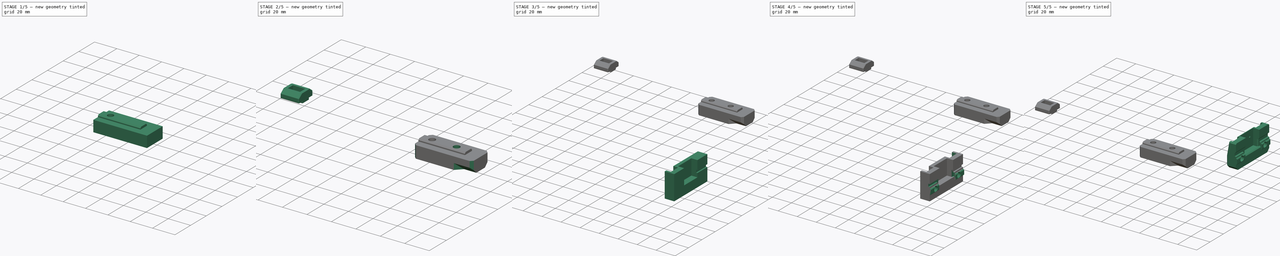
[diagram: build sequence overview — one tinted view per stage of 5, left to right]
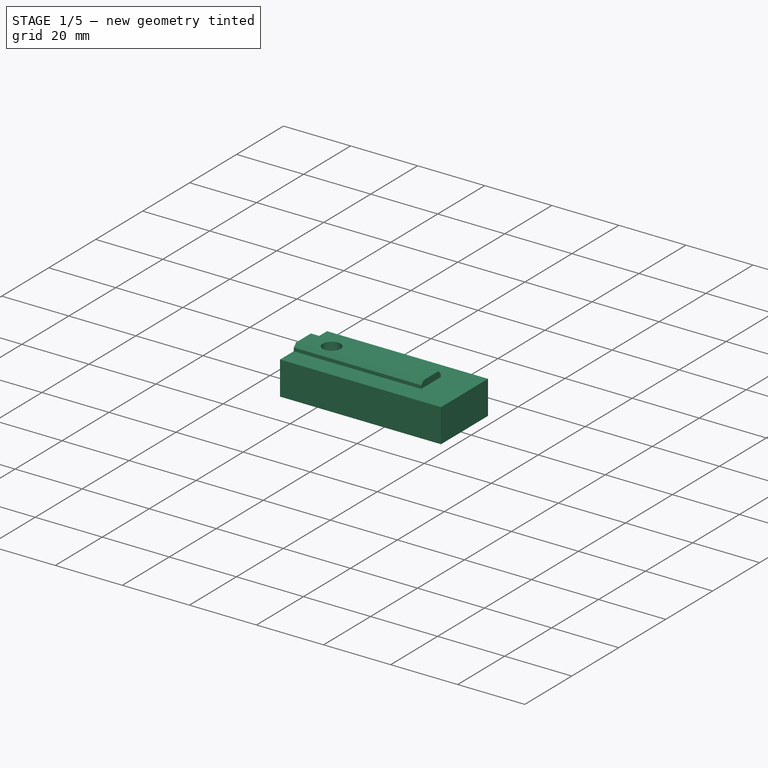
[diagram: stage 1 of 5 — iso view after this stage's code; geometry added in this stage tinted green]
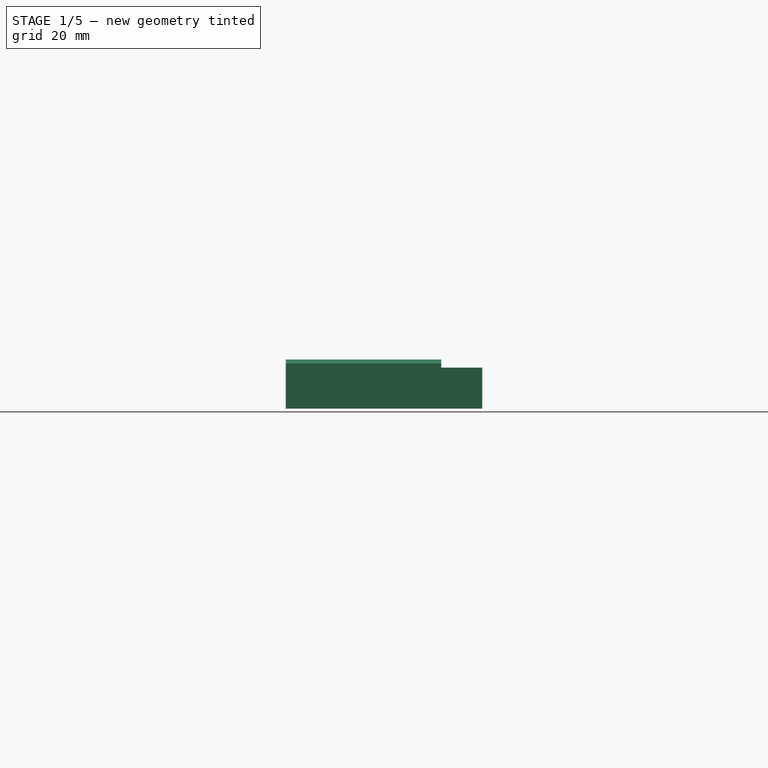
[diagram: stage 1 of 5 — front view after this stage's code; geometry added in this stage tinted green]
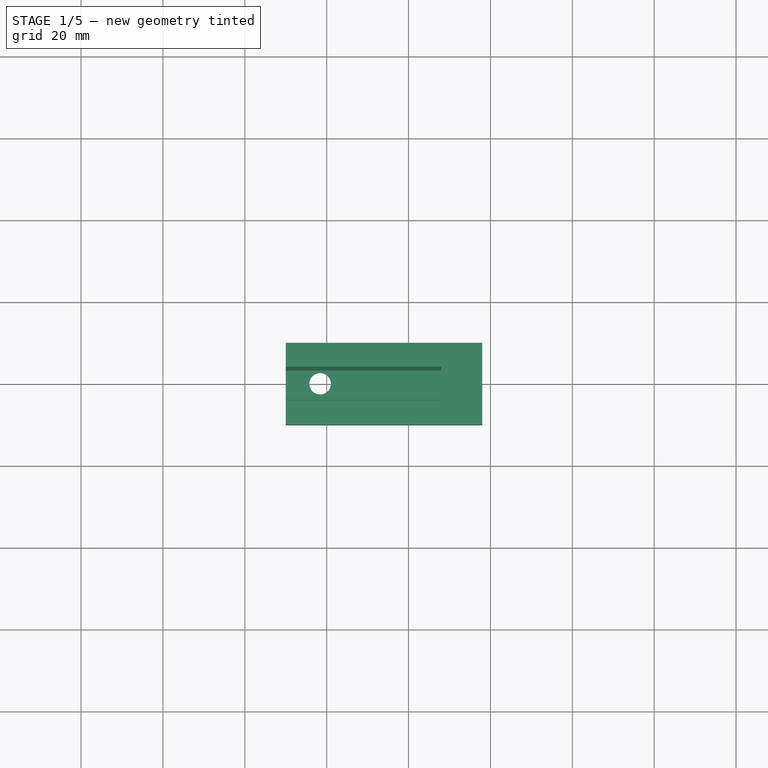
[diagram: stage 1 of 5 — top view after this stage's code; geometry added in this stage tinted green]
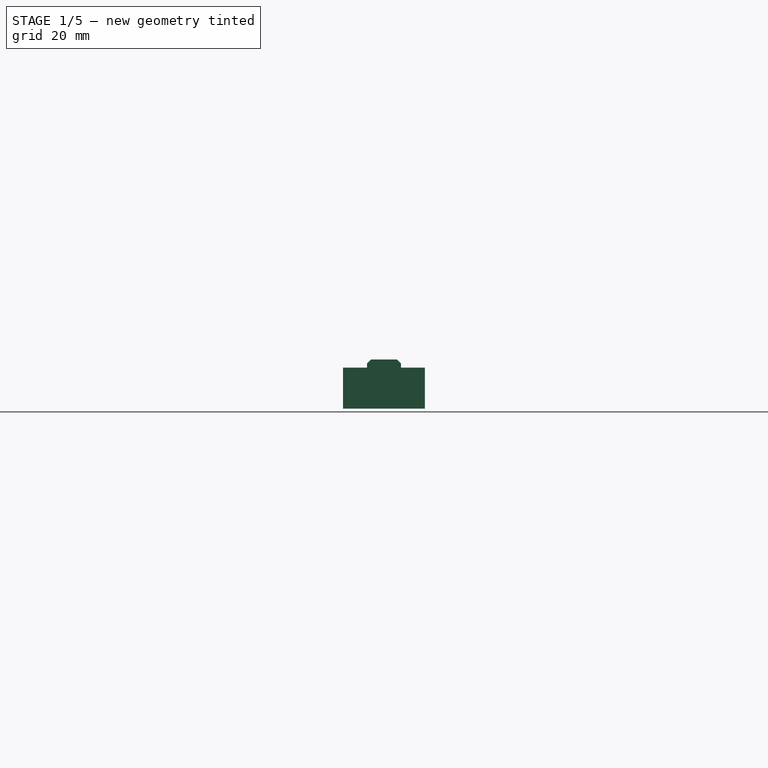
[diagram: stage 1 of 5 — right view after this stage's code; geometry added in this stage tinted green]
FCSTD DOCUMENT  (FreeCAD 0.18R16158 (Git))
Label: yendstop_3018pro
License: All rights reserved
LicenseURL: http://en.wikipedia.org/wiki/All_rights_reserved
objects: Sketcher::SketchObject×28, PartDesign::Pocket×18, PartDesign::Mirrored×12, PartDesign::Chamfer×12, PartDesign::Pad×8, PartDesign::ShapeBinder×7, PartDesign::LinearPattern×5, PartDesign::Body×5, App::Part×3, Part::Feature×2, PartDesign::Plane×2, PartDesign::MultiTransform×1, PartDesign::Fillet×1, PartDesign::Revolution×1, Part::Mirroring×1, PartDesign::Hole×1
note: 132 computed .brp shape members not serialized (recipe doc carries the construction recipe); baked Part::Feature solids carry a one-line shape summary decoded from their .brp

FEATURE [Sketcher::SketchObject] Sketch
  MapMode = 5
  Placement = pos=(0,0,0) rot=(0.57735,0.57735,0.57735;2.0944rad)
  Support = -> [YZ_Plane001]
  sketch-geometry (4):
    g0: LineSegment StartX=-90 StartY=7.5 StartZ=0 EndX=90 EndY=7.5 EndZ=0
    g1: LineSegment StartX=90 StartY=7.5 StartZ=0 EndX=90 EndY=-7.5 EndZ=0
    g2: LineSegment StartX=90 StartY=-7.5 StartZ=0 EndX=-90 EndY=-7.5 EndZ=0
    g3: LineSegment StartX=-90 StartY=-7.5 StartZ=0 EndX=-90 EndY=7.5 EndZ=0
  constraints (10):
    c: Coincident(g0,g1)
    c: Coincident(g1,g2)
    c: Coincident(g2,g3)
    c: Coincident(g3,g0)
    c: Horizontal(g2)
    c: Vertical(g3)
    c: Symmetric(g0,g0,g-2)
    c: Symmetric(g0,g1,g-1)
    c: DistanceX(g0,g0) = 180
    c: DistanceY(g3,g3) = 15
FEATURE [PartDesign::Pad] Pad
  Length = 300
  Length2 = 100
  Midplane = true
  Placement = pos=(0,0,0) rot=(0.57735,0.57735,0.57735;2.0944rad)
  Profile = -> Sketch
  Refine = true
  Type = 0
FEATURE [Sketcher::SketchObject] Sketch001
  ExternalGeometry = -> [Pad]
  MapMode = 5
  Placement = pos=(150,-3.3e-14,3.3e-14) rot=(0.57735,0.57735,0.57735;2.0944rad)
  Support = -> [Pad]
  sketch-geometry (14):
    g0: LineSegment StartX=-90 StartY=3.175 StartZ=0 EndX=-87.6 EndY=3.175 EndZ=0
    g1: LineSegment StartX=-87.6 StartY=-3.175 StartZ=0 EndX=-90 EndY=-3.175 EndZ=0
    g2: LineSegment StartX=-90 StartY=-3.175 StartZ=0 EndX=-90 EndY=3.175 EndZ=0
    g3: LineSegment StartX=-87.6 StartY=5.1 StartZ=0 EndX=-82 EndY=5.1 EndZ=0
    g4: LineSegment StartX=-82 StartY=5.1 StartZ=0 EndX=-82 EndY=0.9 EndZ=0
    g5: LineSegment StartX=-82 StartY=-5.1 StartZ=0 EndX=-87.6 EndY=-5.1 EndZ=0
    g6: LineSegment StartX=-87.6 StartY=-5.1 StartZ=0 EndX=-87.6 EndY=-3.175 EndZ=0
    g7: LineSegment StartX=-87.6 StartY=3.175 StartZ=0 EndX=-87.6 EndY=5.1 EndZ=0
    g8: LineSegment [constr] StartX=-87.6 StartY=3.175 StartZ=0 EndX=-87.6 EndY=-3.175 EndZ=0
    g9: LineSegment StartX=-82 StartY=0.9 StartZ=0 EndX=-78.75 EndY=-1.425 EndZ=0
    g10: LineSegment StartX=-78.75 StartY=-1.425 StartZ=0 EndX=-78.75 EndY=-3.175 EndZ=0
    g11: LineSegment StartX=-78.75 StartY=-3.175 StartZ=0 EndX=-82 EndY=-3.175 EndZ=0
    g12: LineSegment StartX=-82 StartY=-3.175 StartZ=0 EndX=-82 EndY=-5.1 EndZ=0
    g13: LineSegment [constr] StartX=-82 StartY=-3.175 StartZ=0 EndX=-87.6 EndY=-3.175 EndZ=0
  constraints (37):
    c: Coincident(g1,g2)
    c: Coincident(g2,g0)
    c: Horizontal(g0)
    c: Horizontal(g1)
    c: Coincident(g3,g4)
    c: Coincident(g12,g5)
    c: Coincident(g5,g6)
    c: Coincident(g7,g3)
    c: Horizontal(g3)
    c: Horizontal(g5)
    c: Vertical(g6)
    c: Coincident(g7,g0)
    c: Vertical(g7)
    c: Coincident(g6,g1)
    c: Symmetric(g0,g1,g-1)
    c: PointOnObject(g0,g-3)
    c: DistanceY(g2,g2) = 6.35
    c: DistanceX(g0,g0) = 2.4
    c: Coincident(g8,g0)
    c: Coincident(g8,g1)
    c: Vertical(g8)
    c: Symmetric(g3,g12,g-1)
    c: DistanceY(g3,g-3) = 2.4
    c: DistanceX(g-3,g3) = 8
    c: Coincident(g10,g9)
    c: Vertical(g10)
    c: Coincident(g11,g10)
    c: Coincident(g4,g9)
    c: Coincident(g12,g11)
    c: Tangent(g4,g12)
    c: DistanceX(g0,g9) = 11.25
    c: DistanceY(g10,g10) = 1.75
    c: Horizontal(g11)
    c: DistanceY(g4,g4) = 4.2
    c: Coincident(g13,g11)
    c: Coincident(g13,g1)
    c: Horizontal(g13)
FEATURE [PartDesign::Pocket] Pocket
  BaseFeature = -> Pad
  Length = 5
  Length2 = 100
  Placement = pos=(0,0,0) rot=(0.57735,0.57735,0.57735;2.0944rad)
  Profile = -> Sketch001
  Refine = true
  Type = 1
FEATURE [PartDesign::Mirrored] Mirrored
  BaseFeature = -> Pocket
  MirrorPlane = -> XZ_Plane001
  Originals = -> [Pocket]
  Placement = pos=(0,0,0) rot=(0.57735,0.57735,0.57735;2.0944rad)
  Refine = true
FEATURE [Sketcher::SketchObject] Sketch002
  ExternalGeometry = -> [Mirrored]
  MapMode = 5
  Placement = pos=(150,-3.3e-14,3.3e-14) rot=(0.57735,0.57735,0.57735;2.0944rad)
  Support = -> [Mirrored]
  sketch-geometry (28):
    g0: LineSegment StartX=-70.875 StartY=7.5 StartZ=0 EndX=-70.875 EndY=3.5 EndZ=0
    g1: LineSegment StartX=-70.875 StartY=3.5 StartZ=0 EndX=-73.275 EndY=3.5 EndZ=0
    g2: LineSegment StartX=-73.275 StartY=3.5 StartZ=0 EndX=-73.275 EndY=5.1 EndZ=0
    g3: LineSegment StartX=-73.275 StartY=5.1 StartZ=0 EndX=-78 EndY=5.1 EndZ=0
    g4: LineSegment StartX=-78 StartY=5.1 StartZ=0 EndX=-78 EndY=2.1 EndZ=0
    g5: LineSegment StartX=-78 StartY=2.1 StartZ=0 EndX=-74 EndY=-0.972 EndZ=0
    g6: LineSegment StartX=-74 StartY=-0.972 StartZ=0 EndX=-74 EndY=-3.75 EndZ=0
    g7: LineSegment StartX=-74 StartY=-3.75 StartZ=0 EndX=-70.3828 EndY=-3.75 EndZ=0
    g8: LineSegment StartX=-70.3828 StartY=-3.75 StartZ=0 EndX=-68.625 EndY=-5.1 EndZ=0
    g9: LineSegment StartX=-68.625 StartY=-5.1 StartZ=0 EndX=-64.625 EndY=-5.1 EndZ=0
    g10: LineSegment StartX=-62.375 StartY=7.5 StartZ=0 EndX=-70.875 EndY=7.5 EndZ=0
    g11: LineSegment StartX=-62.375 StartY=7.5 StartZ=0 EndX=-62.375 EndY=3.5 EndZ=0
    g12: LineSegment StartX=-62.375 StartY=3.5 StartZ=0 EndX=-59.975 EndY=3.5 EndZ=0
    g13: LineSegment StartX=-59.975 StartY=3.5 StartZ=0 EndX=-59.975 EndY=5.1 EndZ=0
    g14: LineSegment StartX=-59.975 StartY=5.1 StartZ=0 EndX=-55.25 EndY=5.1 EndZ=0
    g15: LineSegment StartX=-55.25 StartY=5.1 StartZ=0 EndX=-55.25 EndY=2.1 EndZ=0
    g16: LineSegment StartX=-55.25 StartY=2.1 StartZ=0 EndX=-59.25 EndY=-0.972 EndZ=0
    g17: LineSegment StartX=-59.25 StartY=-0.972 StartZ=0 EndX=-59.25 EndY=-3.75 EndZ=0
    g18: LineSegment StartX=-59.25 StartY=-3.75 StartZ=0 EndX=-62.8672 EndY=-3.75 EndZ=0
    g19: LineSegment StartX=-62.8672 StartY=-3.75 StartZ=0 EndX=-64.625 EndY=-5.1 EndZ=0
    g20: LineSegment [constr] StartX=-70.3828 StartY=-3.75 StartZ=0 EndX=-62.8672 EndY=-3.75 EndZ=0
    g21: LineSegment [constr] StartX=-70.875 StartY=3.5 StartZ=0 EndX=-62.375 EndY=3.5 EndZ=0
    g22: LineSegment [constr] StartX=-78 StartY=2.1 StartZ=0 EndX=-55.25 EndY=2.1 EndZ=0
    g23: LineSegment [constr] StartX=-59.975 StartY=5.1 StartZ=0 EndX=-73.275 EndY=5.1 EndZ=0
    g24: LineSegment [constr] StartX=-74 StartY=-0.972 StartZ=0 EndX=-59.25 EndY=-0.972 EndZ=0
    g25: LineSegment [constr] StartX=-66.625 StartY=7.5 StartZ=0 EndX=-66.625 EndY=-5.1 EndZ=0
    g26: LineSegment [constr] StartX=-70.3828 StartY=-3.75 StartZ=0 EndX=-74 EndY=-0.972 EndZ=0
    g27: LineSegment [constr] StartX=-62.8672 StartY=-3.75 StartZ=0 EndX=-59.25 EndY=-0.972 EndZ=0
  constraints (76):
    c: PointOnObject(g0,g-3)
    c: Coincident(g1,g0)
    c: Horizontal(g1)
    c: Coincident(g2,g1)
    c: Coincident(g3,g2)
    c: Horizontal(g3)
    c: Coincident(g4,g3)
    c: Coincident(g5,g4)
    c: Coincident(g6,g5)
    c: Coincident(g7,g6)
    c: Coincident(g8,g7)
    c: Coincident(g9,g8)
    c: Horizontal(g9)
    c: PointOnObject(g10,g-3)
    c: Coincident(g10,g0)
    c: Vertical(g0)
    c: Vertical(g2)
    c: Vertical(g6)
    c: Horizontal(g7)
    c: Coincident(g11,g10)
    c: Vertical(g11)
    c: Coincident(g12,g11)
    c: Coincident(g13,g12)
    c: Coincident(g14,g13)
    c: Horizontal(g14)
    c: Coincident(g15,g14)
    c: Vertical(g15)
    c: Coincident(g16,g15)
    c: Coincident(g17,g16)
    c: Vertical(g17)
    c: Coincident(g18,g17)
    c: Horizontal(g18)
    c: Coincident(g19,g18)
    c: Coincident(g19,g9)
    c: Coincident(g20,g7)
    c: Coincident(g20,g18)
    c: Horizontal(g20)
    c: Coincident(g21,g0)
    c: Coincident(g21,g11)
    c: Coincident(g22,g4)
    c: Coincident(g22,g15)
    c: Horizontal(g22)
    c: Coincident(g23,g13)
    c: Coincident(g23,g2)
    c: Horizontal(g23)
    c: Horizontal(g21)
    c: Horizontal(g12)
    c: Vertical(g13)
    c: Vertical(g4)
    c: Coincident(g24,g5)
    c: Coincident(g24,g16)
    c: Horizontal(g24)
    c: DistanceX(g2,g0) = 2.4
    c: Equal(g1,g12)
    c: Vertical(g25)
    c: Symmetric(g9,g8,g25)
    c: Symmetric(g10,g0,g25)
    c: DistanceY(g3,g0) = 2.4
    c: DistanceX(g10,g10) = 8.5
    c: DistanceX(g3,g14) = 22.75
    c: Equal(g14,g3)
    c: DistanceY(g0,g0) = 4
    c: DistanceX(g9,g9) = 4
    c: DistanceX(g6,g17) = 14.75
    c: Equal(g18,g7)
    c: Coincident(g26,g7)
    c: Coincident(g26,g5)
    c: Coincident(g27,g18)
    c: Coincident(g27,g16)
    c: Parallel(g27,g16)
    c: Parallel(g19,g27)
    c: Parallel(g26,g8)
    c: DistanceY(g-4,g8) = 2.4
    c: DistanceY(g4,g4) = 3
    c: DistanceY(g-4,g6) = 3.75
    c: DistanceX(g-5,g3) = 4
FEATURE [PartDesign::Pocket] Pocket001
  BaseFeature = -> Mirrored
  Length = 5
  Length2 = 100
  Placement = pos=(0,0,0) rot=(0.57735,0.57735,0.57735;2.0944rad)
  Profile = -> Sketch002
  Refine = true
  Type = 1
FEATURE [PartDesign::LinearPattern] LinearPattern
  BaseFeature = -> Pocket001
  Direction = -> Sketch002 [H_Axis]
  Length = 133.25
  Occurrences = 4
  Originals = -> [Pocket001]
  Placement = pos=(0,0,0) rot=(0.57735,0.57735,0.57735;2.0944rad)
  Refine = true
FEATURE [Sketcher::SketchObject] Sketch003
  ExternalGeometry = -> [LinearPattern]
  MapMode = 5
  Placement = pos=(150,-3.3e-14,3.3e-14) rot=(0.57735,0.57735,0.57735;2.0944rad)
  Support = -> [LinearPattern]
  sketch-geometry (30):
    g0: LineSegment StartX=-48.6667 StartY=-7.5 StartZ=0 EndX=-48.6667 EndY=-3.5 EndZ=0
    g1: LineSegment StartX=-48.6667 StartY=-3.5 StartZ=0 EndX=-51.0667 EndY=-3.5 EndZ=0
    g2: LineSegment StartX=-51.0667 StartY=-3.5 StartZ=0 EndX=-51.0667 EndY=-5.1 EndZ=0
    g3: LineSegment StartX=-51.0667 StartY=-5.1 StartZ=0 EndX=-55.7917 EndY=-5.1 EndZ=0
    g4: LineSegment StartX=-55.7917 StartY=-5.1 StartZ=0 EndX=-55.7917 EndY=-2.1 EndZ=0
    g5: LineSegment StartX=-55.7917 StartY=-2.1 StartZ=0 EndX=-51.7917 EndY=0.972 EndZ=0
    g6: LineSegment StartX=-46.4167 StartY=5.1 StartZ=0 EndX=-42.4167 EndY=5.1 EndZ=0
    g7: LineSegment StartX=-42.4167 StartY=5.1 StartZ=0 EndX=-40.6589 EndY=3.75 EndZ=0
    g8: LineSegment StartX=-33.0417 StartY=-2.1 StartZ=0 EndX=-33.0417 EndY=-5.1 EndZ=0
    g9: LineSegment StartX=-33.0417 StartY=-5.1 StartZ=0 EndX=-37.7667 EndY=-5.1 EndZ=0
    g10: LineSegment StartX=-37.7667 StartY=-5.1 StartZ=0 EndX=-37.7667 EndY=-3.5 EndZ=0
    g11: LineSegment StartX=-37.7667 StartY=-3.5 StartZ=0 EndX=-40.1667 EndY=-3.5 EndZ=0
    g12: LineSegment StartX=-40.1667 StartY=-3.5 StartZ=0 EndX=-40.1667 EndY=-7.5 EndZ=0
    g13: LineSegment StartX=-40.1667 StartY=-7.5 StartZ=0 EndX=-48.6667 EndY=-7.5 EndZ=0
    g14: LineSegment [constr] StartX=-44.4167 StartY=-7.5 StartZ=0 EndX=-44.4167 EndY=5.1 EndZ=0
    g15: LineSegment [constr] StartX=-40.1667 StartY=-3.5 StartZ=0 EndX=-48.6667 EndY=-3.5 EndZ=0
    g16: LineSegment [constr] StartX=-37.7667 StartY=-5.1 StartZ=0 EndX=-51.0667 EndY=-5.1 EndZ=0
    g17: LineSegment [constr] StartX=-33.0417 StartY=-2.1 StartZ=0 EndX=-55.7917 EndY=-2.1 EndZ=0
    g18: LineSegment StartX=-51.7917 StartY=0.972 StartZ=0 EndX=-51.7917 EndY=3.75 EndZ=0
    g19: LineSegment StartX=-51.7917 StartY=3.75 StartZ=0 EndX=-48.1745 EndY=3.75 EndZ=0
    g20: LineSegment StartX=-37.0417 StartY=3.75 StartZ=0 EndX=-37.0417 EndY=0.972 EndZ=0
    g21: LineSegment [constr] StartX=-37.0417 StartY=0.972 StartZ=0 EndX=-51.7917 EndY=0.972 EndZ=0
    g22: LineSegment StartX=-37.0417 StartY=0.972 StartZ=0 EndX=-33.0417 EndY=-2.1 EndZ=0
    g23: LineSegment StartX=-48.1745 StartY=3.75 StartZ=0 EndX=-46.4167 EndY=5.1 EndZ=0
    g24: LineSegment StartX=-40.6589 StartY=3.75 StartZ=0 EndX=-37.0417 EndY=3.75 EndZ=0
    g25: LineSegment [constr] StartX=-48.1745 StartY=3.75 StartZ=0 EndX=-40.6589 EndY=3.75 EndZ=0
    g26: LineSegment [constr] StartX=-40.6589 StartY=3.75 StartZ=0 EndX=-37.0417 EndY=0.972 EndZ=0
    g27: LineSegment [constr] StartX=-48.1745 StartY=3.75 StartZ=0 EndX=-51.7917 EndY=0.972 EndZ=0
    g28: LineSegment [constr] StartX=-51.7917 StartY=3.75 StartZ=0 EndX=-55.25 EndY=3.75 EndZ=0
    g29: LineSegment [constr] StartX=-37.0417 StartY=3.75 StartZ=0 EndX=-33.5833 EndY=3.75 EndZ=0
  constraints (82):
    c: PointOnObject(g0,g-3)
    c: Coincident(g1,g0)
    c: Coincident(g2,g1)
    c: Coincident(g3,g2)
    c: Coincident(g4,g3)
    c: Coincident(g5,g4)
    c: Coincident(g6,g23)
    c: Coincident(g7,g6)
    c: Coincident(g8,g22)
    c: Vertical(g8)
    c: Coincident(g9,g8)
    c: Coincident(g10,g9)
    c: Coincident(g11,g10)
    c: Horizontal(g11)
    c: Coincident(g12,g11)
    c: PointOnObject(g12,g-3)
    c: Vertical(g12)
    c: Coincident(g13,g12)
    c: Coincident(g13,g0)
    c: Horizontal(g9)
    c: Horizontal(g3)
    c: Horizontal(g1)
    c: Vertical(g10)
    c: Vertical(g0)
    c: Vertical(g4)
    c: Horizontal(g6)
    c: Vertical(g2)
    c: Vertical(g14)
    c: Coincident(g15,g11)
    c: Coincident(g15,g0)
    c: Coincident(g16,g9)
    c: Coincident(g16,g2)
    c: Coincident(g17,g22)
    c: Coincident(g17,g4)
    c: Horizontal(g17)
    c: Horizontal(g15)
    c: Symmetric(g12,g0,g14)
    c: Symmetric(g6,g23,g14)
    c: DistanceX(g6,g6) = 4
    c: DistanceY(g23,g-4) = 2.4
    c: Equal(g9,g3)
    c: Equal(g2,g10)
    c: DistanceX(g11,g11) = 2.4
    c: DistanceY(g12,g12) = 4
    c: DistanceX(g3,g8) = 22.75
    c: Equal(g11,g1)
    c: DistanceY(g4,g4) = 3
    c: DistanceX(g13,g13) = 8.5
    c: DistanceY(g-3,g3) = 2.4
    c: Vertical(g18)
    c: Coincident(g19,g18)
    c: Horizontal(g19)
    c: Coincident(g20,g24)
    c: Vertical(g20)
    c: Horizontal(g21)
    c: Coincident(g22,g20)
    c: Coincident(g5,g18)
    c: Coincident(g24,g7)
    c: Coincident(g19,g23)
    c: Coincident(g21,g20)
    c: Coincident(g21,g5)
    c: Horizontal(g24)
    c: Coincident(g25,g19)
    c: Coincident(g25,g7)
    c: Horizontal(g25)
    c: Coincident(g26,g7)
    c: Coincident(g26,g20)
    c: Coincident(g27,g19)
    c: Coincident(g27,g5)
    c: Parallel(g27,g23)
    c: Parallel(g27,g5)
    c: Parallel(g7,g26)
    c: Parallel(g26,g22)
    c: DistanceX(g18,g20) = 14.75
    c: DistanceY(g18,g-4) = 3.75
    c: Coincident(g28,g18)
    c: PointOnObject(g28,g-6)
    c: Horizontal(g28)
    c: Coincident(g29,g20)
    c: PointOnObject(g29,g-5)
    c: Horizontal(g29)
    c: Equal(g29,g28)
FEATURE [PartDesign::Pocket] Pocket002
  BaseFeature = -> LinearPattern
  Length = 5
  Length2 = 100
  Placement = pos=(0,0,0) rot=(0.57735,0.57735,0.57735;2.0944rad)
  Profile = -> Sketch003
  Refine = true
  Type = 1
FEATURE [PartDesign::LinearPattern] LinearPattern001
  BaseFeature = -> Pocket002
  Direction = -> Sketch003 [H_Axis]
  Length = 88.83
  Occurrences = 3
  Originals = -> [Pocket002]
  Placement = pos=(0,0,0) rot=(0.57735,0.57735,0.57735;2.0944rad)
  Refine = true
FEATURE [PartDesign::ShapeBinder] ShapeBinder004
  Support = -> [LinearPattern001]
  TraceSupport = true
FEATURE [Sketcher::SketchObject] Sketch020
  ExternalGeometry = -> [ShapeBinder004]
  MapMode = 5
  Placement = pos=(2.1e-15,-3.3e-15,-7.5) rot=(1,0,0;3.14159rad)
  Support = -> [ShapeBinder004]
  sketch-geometry (4):
    g0: LineSegment StartX=158 StartY=-10 StartZ=0 EndX=110 EndY=-10 EndZ=0
    g1: LineSegment StartX=110 StartY=-10 StartZ=0 EndX=110 EndY=10 EndZ=0
    g2: LineSegment StartX=110 StartY=10 StartZ=0 EndX=158 EndY=10 EndZ=0
    g3: LineSegment StartX=158 StartY=10 StartZ=0 EndX=158 EndY=-10 EndZ=0
  constraints (11):
    c: Coincident(g0,g1)
    c: Coincident(g1,g2)
    c: Coincident(g2,g3)
    c: Coincident(g3,g0)
    c: Horizontal(g0)
    c: Horizontal(g2)
    c: Vertical(g1)
    c: Symmetric(g2,g0,g-1)
    c: DistanceY(g3,g3) = 20
    c: DistanceX(g1,g-6) = 40
    c: DistanceX(g-6,g2) = 8
FEATURE [PartDesign::Pad] Pad004
  Length = 10
  Length2 = 100
  Profile = -> Sketch020
  Refine = true
  Type = 0
FEATURE [PartDesign::ShapeBinder] ShapeBinder005
  Placement = pos=(0,0,0) rot=(0.57735,0.57735,0.57735;2.0944rad)
  Support = -> [LinearPattern001]
  TraceSupport = true
FEATURE [Sketcher::SketchObject] Sketch021
  ExternalGeometry = -> [ShapeBinder005,Pad004]
  MapMode = 5
  Placement = pos=(110,0,1.529e-13) rot=(0.57735,-0.57735,-0.57735;2.0944rad)
  Support = -> [Pad004]
  sketch-geometry (7):
    g0: LineSegment StartX=-4.14833 StartY=-7.5 StartZ=0 EndX=4.15167 EndY=-7.5 EndZ=0
    g1: LineSegment StartX=4.15167 StartY=-7.5 StartZ=0 EndX=4.15167 EndY=-6.5 EndZ=0
    g2: LineSegment [constr] StartX=4.15167 StartY=-6.5 StartZ=0 EndX=-4.14833 EndY=-6.5 EndZ=0
    g3: LineSegment StartX=-4.14833 StartY=-6.5 StartZ=0 EndX=-4.14833 EndY=-7.5 EndZ=0
    g4: LineSegment StartX=-4.14833 StartY=-6.5 StartZ=0 EndX=-3.15167 EndY=-5.5 EndZ=0
    g5: LineSegment StartX=-3.15167 StartY=-5.5 StartZ=0 EndX=3.15167 EndY=-5.5 EndZ=0
    g6: LineSegment StartX=3.15167 StartY=-5.5 StartZ=0 EndX=4.15167 EndY=-6.5 EndZ=0
  constraints (19):
    c: Coincident(g0,g1)
    c: Coincident(g1,g2)
    c: Coincident(g2,g3)
    c: Horizontal(g0)
    c: Horizontal(g2)
    c: Vertical(g1)
    c: Vertical(g3)
    c: Coincident(g4,g2)
    c: Coincident(g5,g4)
    c: Coincident(g6,g5)
    c: Coincident(g6,g1)
    c: Symmetric(g5,g4,g-2)
    c: DistanceY(g1,g1) = 1
    c: DistanceY(g1,g5) = 1
    c: Angle(g6,g2) = 0.785398
    c: DistanceX(g0,g-4) = 0.1
    c: PointOnObject(g0,g-5)
    c: Coincident(g3,g0)
    c: DistanceX(g-3,g0) = 0.1
FEATURE [PartDesign::Pad] Pad005
  BaseFeature = -> Pad004
  Length = 10
  Length2 = 100
  Offset = 2
  Profile = -> Sketch021
  Refine = true
  Type = 3
  UpToFace = -> ShapeBinder005 [Face1]
FEATURE [PartDesign::Body] Body004  label="3030_tee_nut"
  Group = -> [ShapeBinder006,Sketch024,Pad006,Sketch025,Pocket015,Sketch026,Pocket016,Sketch027,Pad007,Chamfer011,Chamfer012]
  Origin = -> Origin007
  Placement = pos=(110.15,0,0) rot=(0,0,1;0rad)
  Tip = -> Chamfer012
FEATURE [PartDesign::Pocket] Pocket017
  BaseFeature = -> Pad005
  Length = 0
  Length2 = 100
  Offset = -6.35
  Profile = -> Sketch022
  Refine = true
  Type = 3
  UpToFace = -> Pad005 [Face3]
FEATURE [PartDesign::LinearPattern] LinearPattern003
  BaseFeature = -> Pocket017
  Direction = -> Sketch022 [H_Axis]
  Length = 20
  Occurrences = 2
  Originals = -> [Pocket017]
  Refine = true
FEATURE [Sketcher::SketchObject] Sketch028
  ExternalGeometry = -> [LinearPattern003]
  MapMode = 5
  Placement = pos=(1.93e-14,-1.23e-14,-13.85) rot=(1,0,0;3.14159rad)
  Support = -> [LinearPattern003]
  sketch-geometry (1):
    g0: Circle CenterX=118.4 CenterY=0 CenterZ=0 NormalX=0 NormalY=0 NormalZ=1 AngleXU=0 Radius=5
  constraints (2):
    c: Coincident(g0,g-3)
    c: Diameter(g0) = 10
FEATURE [PartDesign::Hole] Hole
  BaseFeature = -> LinearPattern003
  Depth = 25
  DepthType = 1
  Diameter = 5.3
  DrillPoint = 1
  DrillPointAngle = 118
  HoleCutCountersinkAngle = 90
  HoleCutDepth = 0
  HoleCutDiameter = 12
  HoleCutType = 2
  ModelActualThread = false
  Profile = -> Sketch028
  Refine = true
  Tapered = false
  TaperedAngle = 90
  ThreadAngle = 0
  ThreadClass = 0
  ThreadCutOffInner = 0
  ThreadCutOffOuter = 0
  ThreadDirection = 0
  ThreadFit = 0
  ThreadPitch = 0
  ThreadSize = 0
  ThreadType = 0
  Threaded = false
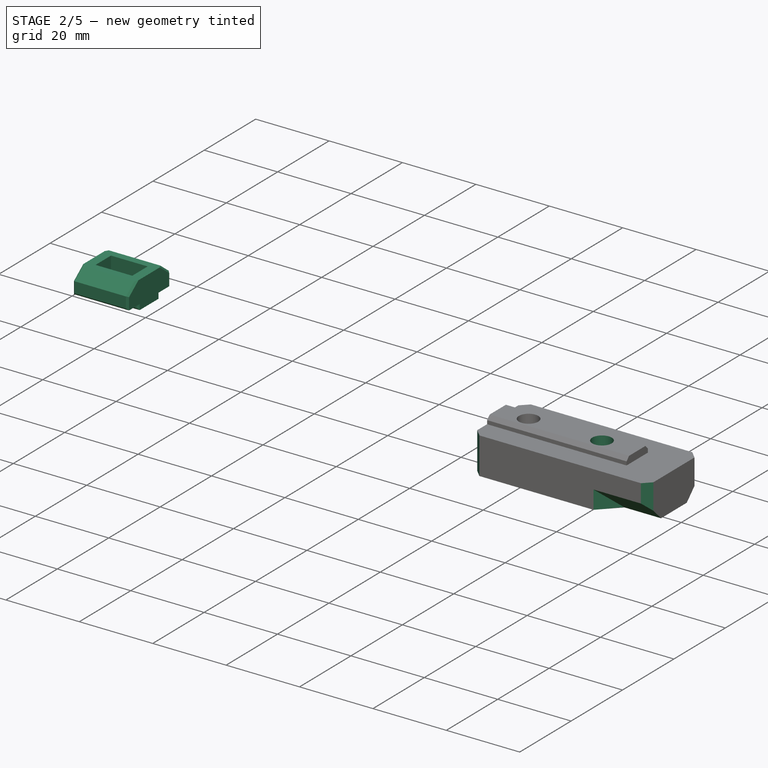
[diagram: stage 2 of 5 — iso view after this stage's code; geometry added in this stage tinted green]
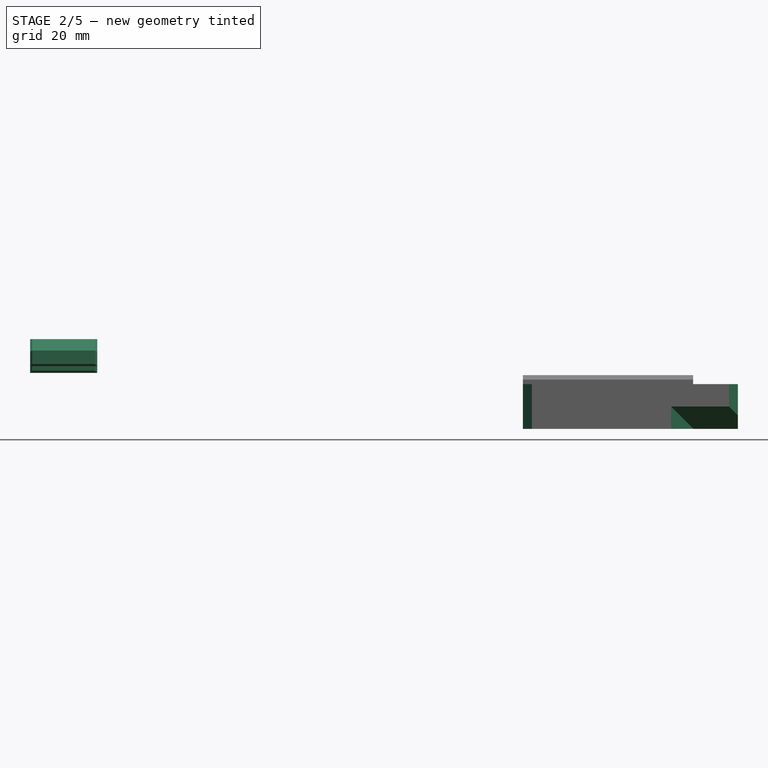
[diagram: stage 2 of 5 — front view after this stage's code; geometry added in this stage tinted green]
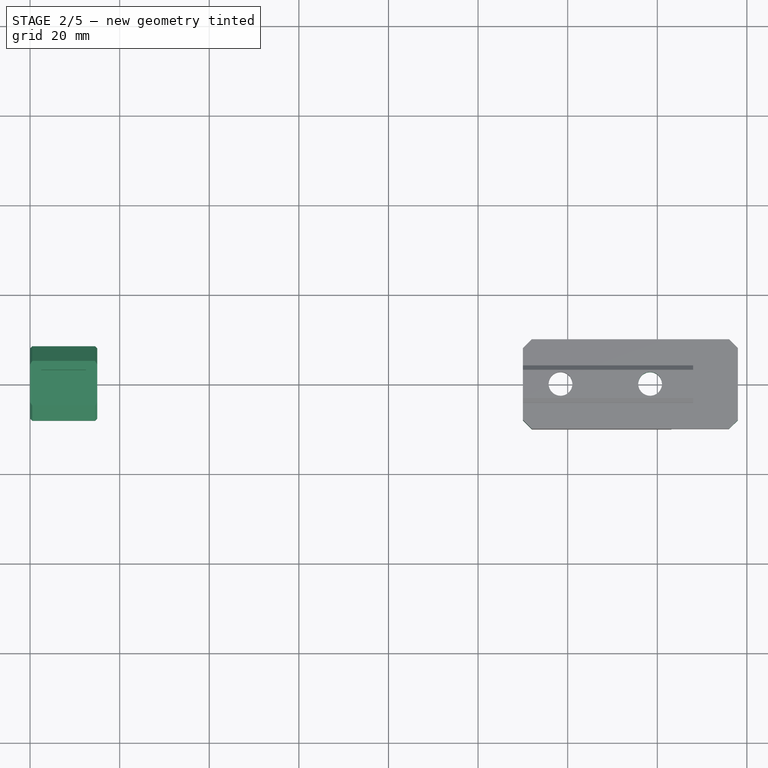
[diagram: stage 2 of 5 — top view after this stage's code; geometry added in this stage tinted green]
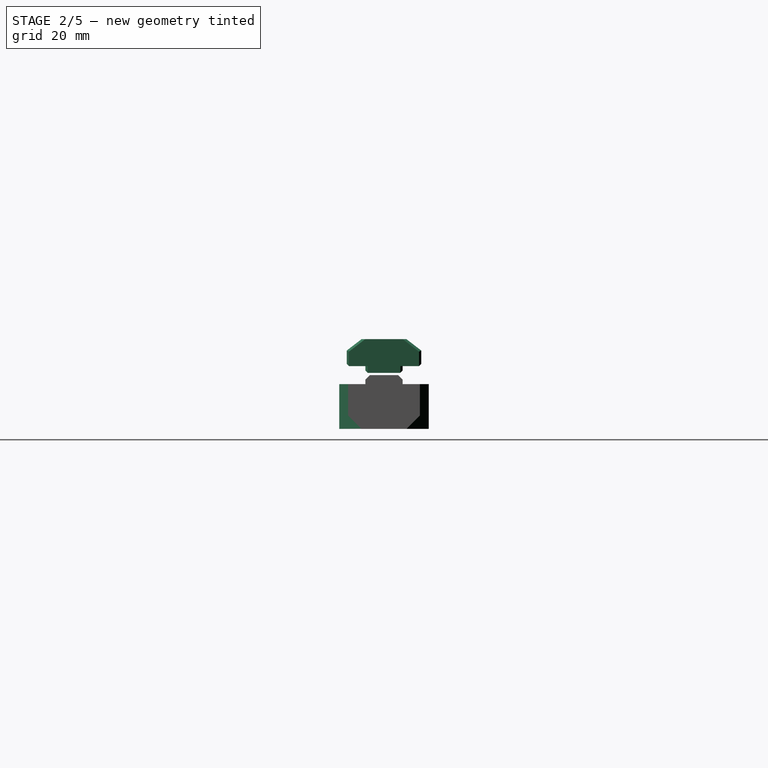
[diagram: stage 2 of 5 — right view after this stage's code; geometry added in this stage tinted green]
FEATURE [Sketcher::SketchObject] Sketch022
  ExternalGeometry = -> [Pad005]
  MapMode = 5
  Placement = pos=(2.43e-14,-1.56e-14,-17.5) rot=(1,0,0;3.14159rad)
  Support = -> [Pad005]
  sketch-geometry (5):
    g0: Circle CenterX=118.4 CenterY=0 CenterZ=0 NormalX=0 NormalY=0 NormalZ=1 AngleXU=0 Radius=6
    g1: LineSegment [constr] StartX=112.4 StartY=6 StartZ=0 EndX=124.4 EndY=6 EndZ=0
    g2: LineSegment [constr] StartX=124.4 StartY=6 StartZ=0 EndX=124.4 EndY=-6 EndZ=0
    g3: LineSegment [constr] StartX=124.4 StartY=-6 StartZ=0 EndX=112.4 EndY=-6 EndZ=0
    g4: LineSegment [constr] StartX=112.4 StartY=-6 StartZ=0 EndX=112.4 EndY=6 EndZ=0
  constraints (15):
    c: PointOnObject(g0,g-1)
    c: Coincident(g1,g2)
    c: Coincident(g2,g3)
    c: Coincident(g3,g4)
    c: Coincident(g4,g1)
    c: Horizontal(g1)
    c: Horizontal(g3)
    c: Vertical(g2)
    c: Vertical(g4)
    c: Tangent(g0,g1)
    c: Tangent(g0,g2)
    c: Tangent(g0,g3)
    c: Tangent(g0,g4)
    c: DistanceX(g-3,g1) = 2.4
    c: Diameter(g0) = 12
FEATURE [PartDesign::ShapeBinder] ShapeBinder006
  Placement = pos=(-110.15,0,-6e-15) rot=(0.57735,0.57735,0.57735;2.0944rad)
  Support = -> [LinearPattern001]
  TraceSupport = true
FEATURE [Sketcher::SketchObject] Sketch024
  ExternalGeometry = -> [ShapeBinder006]
  MapMode = 5
  Placement = pos=(0,0,0) rot=(0.57735,0.57735,0.57735;2.0944rad)
  Support = -> [YZ_Plane007]
  sketch-geometry (12):
    g0: LineSegment StartX=-5.00167 StartY=2.54382 StartZ=0 EndX=4.99833 EndY=2.54382 EndZ=0
    g1: LineSegment StartX=4.99833 StartY=2.54382 StartZ=0 EndX=8.3106 EndY=1.066e-13 EndZ=0
    g2: LineSegment StartX=8.3106 StartY=1.066e-13 StartZ=0 EndX=8.3106 EndY=-3.5 EndZ=0
    g3: LineSegment StartX=8.3106 StartY=-3.5 StartZ=0 EndX=4.14833 EndY=-3.5 EndZ=0
    g4: LineSegment StartX=-8.3106 StartY=-3.5 StartZ=0 EndX=-8.3106 EndY=0.00256 EndZ=0
    g5: LineSegment StartX=-8.3106 StartY=0.00256 StartZ=0 EndX=-5.00167 EndY=2.54382 EndZ=0
    g6: LineSegment StartX=4.14833 StartY=-3.5 StartZ=0 EndX=4.14833 EndY=-5 EndZ=0
    g7: LineSegment StartX=4.14833 StartY=-5 StartZ=0 EndX=-4.14833 EndY=-5 EndZ=0
    g8: LineSegment StartX=-4.14833 StartY=-5 StartZ=0 EndX=-4.14833 EndY=-3.5 EndZ=0
    g9: LineSegment StartX=-4.14833 StartY=-3.5 StartZ=0 EndX=-8.3106 EndY=-3.5 EndZ=0
    g10: LineSegment [constr] StartX=-7.37667 StartY=0.972 StartZ=0 EndX=-7.25485 EndY=0.813381 EndZ=0
    g11: LineSegment [constr] StartX=7.37333 StartY=0.972 StartZ=0 EndX=7.25151 EndY=0.813381 EndZ=0
  constraints (35):
    c: Horizontal(g0)
    c: Coincident(g1,g0)
    c: Coincident(g2,g1)
    c: Coincident(g3,g2)
    c: Horizontal(g3)
    c: Coincident(g4,g9)
    c: Vertical(g4)
    c: Coincident(g5,g4)
    c: Coincident(g5,g0)
    c: Parallel(g1,g-9)
    c: Parallel(g5,g-17)
    c: Vertical(g2)
    c: DistanceX(g0,g0) = 10
    c: Coincident(g6,g7)
    c: Coincident(g7,g8)
    c: Vertical(g6)
    c: Vertical(g8)
    c: Coincident(g8,g9)
    c: DistanceX(g6,g-4) = 0.1
    c: Symmetric(g6,g7,g-2)
    c: Coincident(g3,g6)
    c: Equal(g6,g8)
    c: Horizontal(g9)
    c: PointOnObject(g-6,g3)
    c: Equal(g3,g9)
    c: Coincident(g10,g-17)
    c: PointOnObject(g10,g5)
    c: Perpendicular(g10,g5)
    c: Distance(g10) = 0.2
    c: Coincident(g11,g-10)
    c: PointOnObject(g11,g1)
    c: Perpendicular(g11,g1)
    c: DistanceY(g2,g2) = 3.5
    c: DistanceY(g-3,g7) = 2.5
    c: Equal(g11,g10)
FEATURE [PartDesign::Pad] Pad006
  Length = 15
  Length2 = 100
  Placement = pos=(0,0,0) rot=(0.57735,0.57735,0.57735;2.0944rad)
  Profile = -> Sketch024
  Refine = true
  Type = 0
FEATURE [Sketcher::SketchObject] Sketch025
  ExternalGeometry = -> [Pad006]
  MapMode = 5
  Placement = pos=(-7e-16,1.1e-15,2.54382) rot=(0,0,-1;1.5708rad)
  Support = -> [Pad006]
  sketch-geometry (2):
    g0: Circle CenterX=0 CenterY=7.5 CenterZ=0 NormalX=0 NormalY=0 NormalZ=1 AngleXU=0 Radius=2.65
    g1: LineSegment [constr] StartX=0 StartY=15 StartZ=0 EndX=0 EndY=0 EndZ=0
  constraints (5):
    c: PointOnObject(g0,g-2)
    c: Coincident(g1,g-1)
    c: Symmetric(g1,g-1,g0)
    c: PointOnObject(g1,g-3)
    c: Diameter(g0) = 5.3
FEATURE [PartDesign::Pocket] Pocket015
  BaseFeature = -> Pad006
  Length = 5
  Length2 = 100
  Placement = pos=(0,0,0) rot=(0.57735,0.57735,0.57735;2.0944rad)
  Profile = -> Sketch025
  Refine = true
  Type = 1
FEATURE [Sketcher::SketchObject] Sketch026
  ExternalGeometry = -> [Pocket015]
  MapMode = 5
  Placement = pos=(-7e-16,1.1e-15,2.54382) rot=(0,0,-1;1.5708rad)
  Support = -> [Pocket015]
  sketch-geometry (6):
    g0: LineSegment StartX=-3 StartY=12.5 StartZ=0 EndX=3 EndY=12.5 EndZ=0
    g1: LineSegment StartX=3 StartY=12.5 StartZ=0 EndX=3 EndY=2.5 EndZ=0
    g2: LineSegment StartX=3 StartY=2.5 StartZ=0 EndX=-3 EndY=2.5 EndZ=0
    g3: LineSegment StartX=-3 StartY=2.5 StartZ=0 EndX=-3 EndY=12.5 EndZ=0
    g4: LineSegment [constr] StartX=-3 StartY=12.5 StartZ=0 EndX=3 EndY=2.5 EndZ=0
    g5: LineSegment [constr] StartX=3 StartY=12.5 StartZ=0 EndX=-3 EndY=2.5 EndZ=0
  constraints (16):
    c: Coincident(g0,g1)
    c: Coincident(g1,g2)
    c: Coincident(g2,g3)
    c: Coincident(g3,g0)
    c: Horizontal(g0)
    c: Horizontal(g2)
    c: Vertical(g1)
    c: Vertical(g3)
    c: DistanceY(g1,g1) = 10
    c: DistanceX(g0,g0) = 6
    c: Coincident(g4,g0)
    c: Coincident(g4,g1)
    c: Coincident(g5,g0)
    c: Coincident(g5,g2)
    c: PointOnObject(g-3,g5)
    c: PointOnObject(g-3,g4)
FEATURE [PartDesign::Pocket] Pocket016
  BaseFeature = -> Pocket015
  Length = 4.4
  Length2 = 100
  Placement = pos=(0,0,0) rot=(0.57735,0.57735,0.57735;2.0944rad)
  Profile = -> Sketch026
  Refine = true
  Type = 0
FEATURE [Sketcher::SketchObject] Sketch027
  ExternalGeometry = -> [Pocket016]
  MapMode = 5
  Placement = pos=(1.3e-15,-1.2e-15,-1.85618) rot=(0,0,-1;1.5708rad)
  Support = -> [Pocket016]
  sketch-geometry (1):
    g0: Circle CenterX=4.3e-15 CenterY=7.5 CenterZ=0 NormalX=0 NormalY=0 NormalZ=1 AngleXU=0 Radius=2.65
  constraints (2):
    c: Coincident(g0,g-3)
    c: Equal(g0,g-3)
FEATURE [PartDesign::Pad] Pad007
  BaseFeature = -> Pocket016
  Length = 0.2
  Length2 = 100
  Placement = pos=(0,0,0) rot=(0.57735,0.57735,0.57735;2.0944rad)
  Profile = -> Sketch027
  Refine = true
  Reversed = true
  Type = 0
FEATURE [PartDesign::Chamfer] Chamfer011
  Base = -> Pad007 [Edge27,Edge11,Edge20,Edge21,Edge19,Edge10,Edge12,Edge13,Edge37,Edge38]
  BaseFeature = -> Pad007
  Placement = pos=(0,0,0) rot=(0.57735,0.57735,0.57735;2.0944rad)
  Size = 0.5
FEATURE [PartDesign::Chamfer] Chamfer012
  Base = -> Chamfer011 [Edge61,Edge34,Edge26,Edge33,Edge60,Edge25]
  BaseFeature = -> Chamfer011
  Placement = pos=(0,0,0) rot=(0.57735,0.57735,0.57735;2.0944rad)
  Size = 0.5
FEATURE [PartDesign::LinearPattern] LinearPattern004
  BaseFeature = -> Hole
  Direction = -> Sketch028 [H_Axis]
  Length = 20
  Occurrences = 2
  Originals = -> [Hole]
  Refine = true
FEATURE [Sketcher::SketchObject] Sketch029
  ExternalGeometry = -> [LinearPattern004]
  MapMode = 5
  Placement = pos=(158,0,2.196e-13) rot=(0.57735,0.57735,0.57735;2.0944rad)
  Support = -> [LinearPattern004]
  sketch-geometry (3):
    g0: LineSegment StartX=10 StartY=-12.5 StartZ=0 EndX=5 EndY=-17.5 EndZ=0
    g1: LineSegment StartX=5 StartY=-17.5 StartZ=0 EndX=10 EndY=-17.5 EndZ=0
    g2: LineSegment StartX=10 StartY=-17.5 StartZ=0 EndX=10 EndY=-12.5 EndZ=0
  constraints (8):
    c: PointOnObject(g0,g-4)
    c: PointOnObject(g0,g-3)
    c: Coincident(g1,g0)
    c: Coincident(g2,g1)
    c: Coincident(g2,g0)
    c: Coincident(g1,g-4)
    c: Equal(g2,g1)
    c: DistanceY(g2,g2) = 5
FEATURE [PartDesign::Pocket] Pocket018
  BaseFeature = -> LinearPattern004
  Length = 0
  Length2 = 100
  Profile = -> Sketch029
  Refine = true
  Type = 3
  UpToFace = -> LinearPattern004 [Face12]
FEATURE [PartDesign::Mirrored] Mirrored011
  BaseFeature = -> Pocket018
  MirrorPlane = -> Sketch029 [V_Axis]
  Originals = -> [Pocket018]
  Refine = true
FEATURE [PartDesign::Chamfer] Chamfer013
  Base = -> Mirrored011 [Edge4,Edge34]
  BaseFeature = -> Mirrored011
  Size = 4.9
FEATURE [PartDesign::Chamfer] Chamfer014
  Base = -> Chamfer013 [Edge37,Edge7,Edge21,Edge3]
  BaseFeature = -> Chamfer013
  Size = 2
FEATURE [PartDesign::Body] Body003  label="y_trippers"
  Group = -> [ShapeBinder004,Sketch020,Pad004,ShapeBinder005,Sketch021,Pad005,Sketch022,Pocket017,LinearPattern003,Sketch028,Hole,LinearPattern004,Sketch029,Pocket018,Mirrored011,Chamfer013,Chamfer014]
  Origin = -> Origin006
  Tip = -> Chamfer014
FEATURE [App::Part] Part002  label="mounts"
  Group = -> [Body002,Part__Mirroring,Body003,Body004]
  Origin = -> Origin004
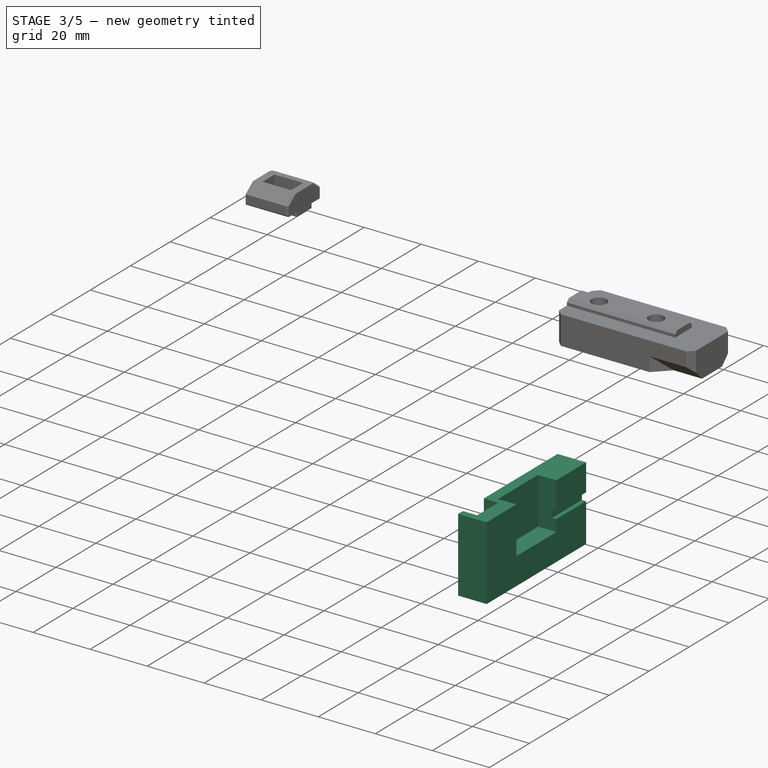
[diagram: stage 3 of 5 — iso view after this stage's code; geometry added in this stage tinted green]
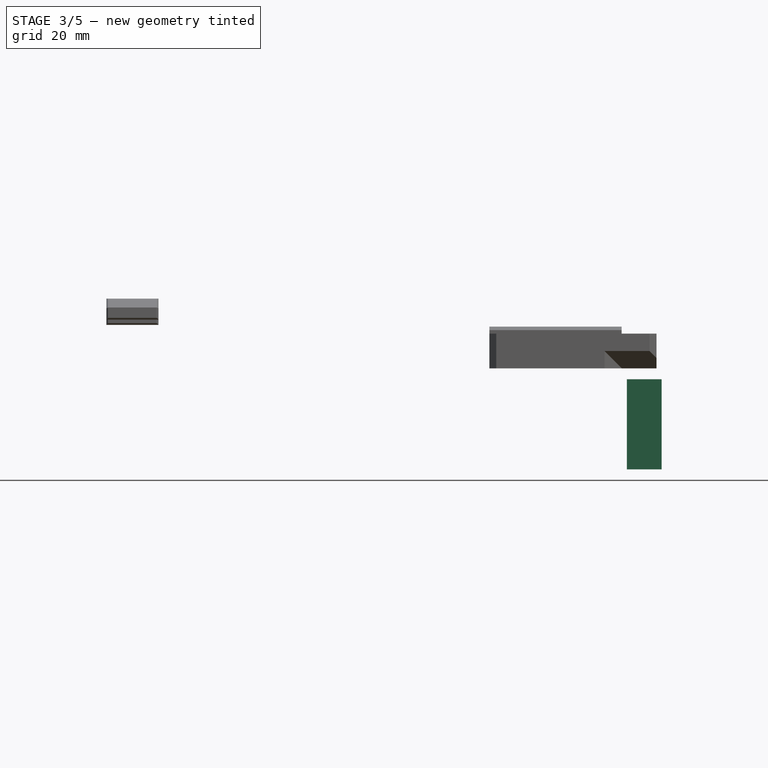
[diagram: stage 3 of 5 — front view after this stage's code; geometry added in this stage tinted green]
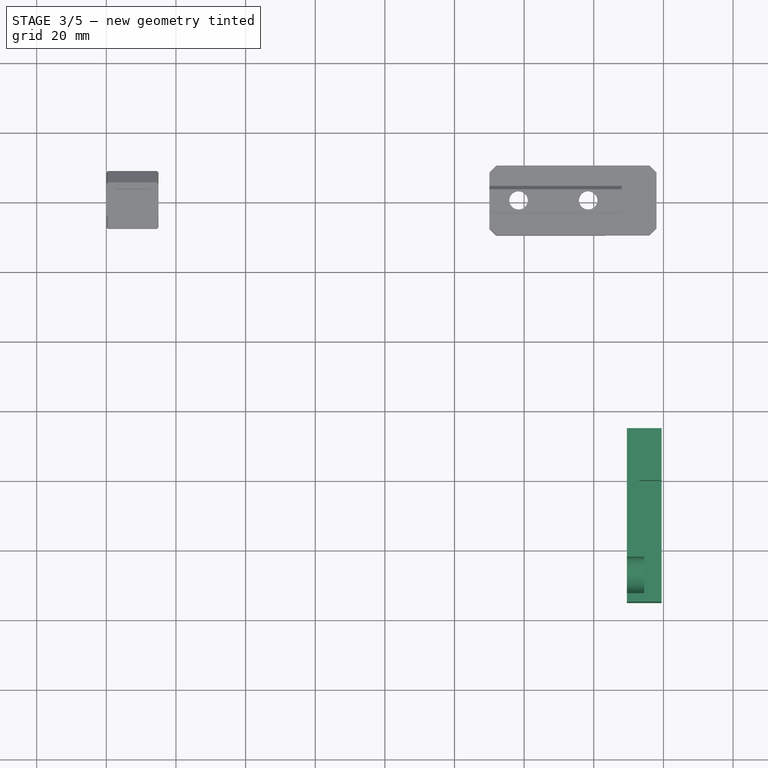
[diagram: stage 3 of 5 — top view after this stage's code; geometry added in this stage tinted green]
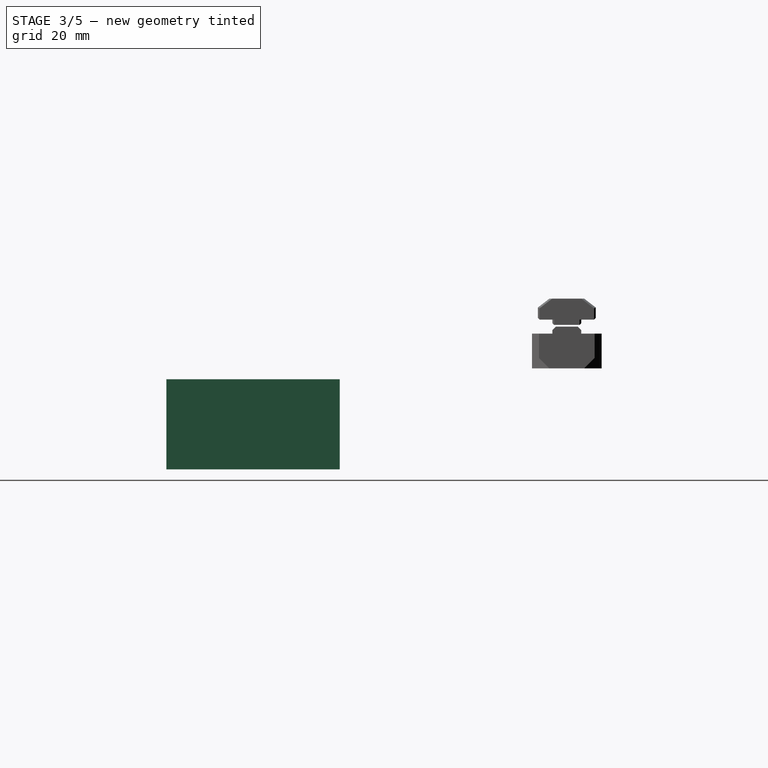
[diagram: stage 3 of 5 — right view after this stage's code; geometry added in this stage tinted green]
FEATURE [PartDesign::Body] Body  label="aluminum extruded bed"
  Group = -> [Sketch,Pad,Sketch001,Pocket,Mirrored,Sketch002,Pocket001,LinearPattern,Sketch003,Pocket002,LinearPattern001]
  Origin = -> Origin001
  Tip = -> LinearPattern001
FEATURE [Sketcher::SketchObject] Sketch004
  MapMode = 5
  Placement = pos=(0,0,0) rot=(1,0,0;1.5708rad)
  Support = -> [XZ_Plane002]
  sketch-geometry (8):
    g0: LineSegment StartX=-9 StartY=20 StartZ=0 EndX=9 EndY=20 EndZ=0
    g1: LineSegment StartX=10 StartY=19 StartZ=0 EndX=10 EndY=-19 EndZ=0
    g2: LineSegment StartX=9 StartY=-20 StartZ=0 EndX=-9 EndY=-20 EndZ=0
    g3: LineSegment StartX=-10 StartY=-19 StartZ=0 EndX=-10 EndY=19 EndZ=0
    g4: ArcOfCircle CenterX=9 CenterY=19 CenterZ=0 NormalX=0 NormalY=0 NormalZ=1 AngleXU=0 Radius=1 StartAngle=-9e-16 EndAngle=1.5708
    g5: ArcOfCircle CenterX=9 CenterY=-19 CenterZ=0 NormalX=0 NormalY=0 NormalZ=1 AngleXU=0 Radius=1 StartAngle=4.71239 EndAngle=6.28319
    g6: ArcOfCircle CenterX=-9 CenterY=-19 CenterZ=0 NormalX=0 NormalY=0 NormalZ=1 AngleXU=0 Radius=1 StartAngle=3.14159 EndAngle=4.71239
    g7: ArcOfCircle CenterX=-9 CenterY=19 CenterZ=0 NormalX=0 NormalY=0 NormalZ=1 AngleXU=0 Radius=1 StartAngle=1.5708 EndAngle=3.14159
  constraints (18):
    c: Horizontal(g0)
    c: Horizontal(g2)
    c: Vertical(g1)
    c: Vertical(g3)
    c: Tangent(g0,g4) = 1.5708
    c: Tangent(g1,g4) = 1.5708
    c: Tangent(g1,g5) = 1.5708
    c: Tangent(g2,g5) = 1.5708
    c: Tangent(g2,g6) = 1.5708
    c: Tangent(g3,g6) = 1.5708
    c: Tangent(g3,g7) = 1.5708
    c: Tangent(g0,g7) = 1.5708
    c: Equal(g5,g6)
    c: Radius(g4) = 1
    c: DistanceX(g3,g1) = 20
    c: DistanceY(g2,g0) = 40
    c: Symmetric(g4,g7,g-2)
    c: Symmetric(g4,g5,g-1)
FEATURE [PartDesign::Pad] Pad001
  Length = 300
  Length2 = 100
  Midplane = true
  Placement = pos=(0,0,0) rot=(1,0,0;1.5708rad)
  Profile = -> Sketch004
  Refine = true
  Type = 0
FEATURE [Sketcher::SketchObject] Sketch005
  ExternalGeometry = -> [Pad001]
  MapMode = 5
  Placement = pos=(0,-150,6.63e-14) rot=(1,0,0;1.5708rad)
  Support = -> [Pad001]
  sketch-geometry (15):
    g0: LineSegment StartX=-3.125 StartY=20 StartZ=0 EndX=3.125 EndY=20 EndZ=0
    g1: LineSegment StartX=3.125 StartY=20 StartZ=0 EndX=3.125 EndY=17.5 EndZ=0
    g2: LineSegment StartX=-3.125 StartY=17.5 StartZ=0 EndX=-3.125 EndY=20 EndZ=0
    g3: LineSegment StartX=5.08579 StartY=17.5 StartZ=0 EndX=5.08579 EndY=16.5 EndZ=0
    g4: LineSegment StartX=-5.08579 StartY=16.5 StartZ=0 EndX=-5.08579 EndY=17.5 EndZ=0
    g5: LineSegment StartX=-5.08579 StartY=16.5 StartZ=0 EndX=-2.33579 EndY=13.75 EndZ=0
    g6: LineSegment StartX=-2.33579 StartY=13.75 StartZ=0 EndX=2.33579 EndY=13.75 EndZ=0
    g7: LineSegment StartX=2.33579 StartY=13.75 StartZ=0 EndX=5.08579 EndY=16.5 EndZ=0
    g8: LineSegment StartX=3.125 StartY=17.5 StartZ=0 EndX=5.08579 EndY=17.5 EndZ=0
    g9: LineSegment StartX=-3.125 StartY=17.5 StartZ=0 EndX=-5.08579 EndY=17.5 EndZ=0
    g10: LineSegment [constr] StartX=-3.125 StartY=17.5 StartZ=0 EndX=3.125 EndY=17.5 EndZ=0
    g11: LineSegment [constr] StartX=5.08579 StartY=16.5 StartZ=0 EndX=-5.08579 EndY=16.5 EndZ=0
    g12: LineSegment [constr] StartX=-9 StartY=19 StartZ=0 EndX=0 EndY=10 EndZ=0
    g13: LineSegment [constr] StartX=0 StartY=10 StartZ=0 EndX=9 EndY=19 EndZ=0
    g14: LineSegment [constr] StartX=5.08579 StartY=16.5 StartZ=0 EndX=5.79289 EndY=15.7929 EndZ=0
  constraints (41):
    c: Coincident(g0,g1)
    c: Coincident(g2,g0)
    c: Horizontal(g0)
    c: Vertical(g1)
    c: Vertical(g2)
    c: PointOnObject(g0,g-3)
    c: Vertical(g3)
    c: Vertical(g4)
    c: Coincident(g6,g5)
    c: Horizontal(g6)
    c: Coincident(g7,g6)
    c: Coincident(g7,g3)
    c: Coincident(g8,g1)
    c: Coincident(g8,g3)
    c: Coincident(g9,g2)
    c: Coincident(g9,g4)
    c: Horizontal(g8)
    c: Horizontal(g9)
    c: Coincident(g10,g2)
    c: Coincident(g10,g1)
    c: Coincident(g11,g3)
    c: Coincident(g11,g4)
    c: Horizontal(g11)
    c: DistanceX(g0,g0) = 6.25
    c: DistanceY(g1,g1) = 2.5
    c: DistanceY(g4,g4) = 1
    c: Coincident(g5,g4)
    c: DistanceY(g6,g0) = 6.25
    c: Coincident(g12,g-5)
    c: PointOnObject(g12,g-2)
    c: Coincident(g13,g12)
    c: Coincident(g13,g-4)
    c: DistanceY(g12,g-4) = 10
    c: Parallel(g13,g7)
    c: Parallel(g12,g5)
    c: Coincident(g14,g3)
    c: PointOnObject(g14,g13)
    c: Perpendicular(g7,g14)
    c: Distance(g14) = 1
    c: Equal(g8,g9)
    c: Symmetric(g1,g2,g-2)
FEATURE [PartDesign::Pocket] Pocket003
  BaseFeature = -> Pad001
  Length = 5
  Length2 = 100
  Placement = pos=(0,0,0) rot=(1,0,0;1.5708rad)
  Profile = -> Sketch005
  Refine = true
  Type = 1
FEATURE [PartDesign::Mirrored] Mirrored001
  BaseFeature = -> Pocket003
  MirrorPlane = -> XY_Plane002
  Originals = -> [Pocket003]
  Placement = pos=(0,0,0) rot=(1,0,0;1.5708rad)
  Refine = true
FEATURE [Sketcher::SketchObject] Sketch006
  ExternalGeometry = -> [Mirrored001]
  MapMode = 5
  Placement = pos=(0,-150,6.63e-14) rot=(1,0,0;1.5708rad)
  Support = -> [Mirrored001]
  sketch-geometry (16):
    g0: LineSegment [constr] StartX=9 StartY=19 StartZ=0 EndX=0 EndY=10 EndZ=0
    g1: LineSegment StartX=10 StartY=13.125 StartZ=0 EndX=7.5 EndY=13.125 EndZ=0
    g2: LineSegment StartX=7.5 StartY=6.875 StartZ=0 EndX=10 EndY=6.875 EndZ=0
    g3: LineSegment StartX=10 StartY=6.875 StartZ=0 EndX=10 EndY=13.125 EndZ=0
    g4: LineSegment StartX=7.5 StartY=15.0858 StartZ=0 EndX=6.5 EndY=15.0858 EndZ=0
    g5: LineSegment StartX=6.5 StartY=4.91421 StartZ=0 EndX=7.5 EndY=4.91421 EndZ=0
    g6: LineSegment StartX=7.5 StartY=13.125 StartZ=0 EndX=7.5 EndY=15.0858 EndZ=0
    g7: LineSegment StartX=7.5 StartY=6.875 StartZ=0 EndX=7.5 EndY=4.91421 EndZ=0
    g8: LineSegment StartX=6.5 StartY=15.0858 StartZ=0 EndX=3.75 EndY=12.3358 EndZ=0
    g9: LineSegment StartX=3.75 StartY=12.3358 StartZ=0 EndX=3.75 EndY=7.66421 EndZ=0
    g10: LineSegment StartX=3.75 StartY=7.66421 StartZ=0 EndX=6.5 EndY=4.91421 EndZ=0
    g11: LineSegment [constr] StartX=7.5 StartY=6.875 StartZ=0 EndX=7.5 EndY=13.125 EndZ=0
    g12: LineSegment [constr] StartX=10 StartY=10 StartZ=0 EndX=3.75 EndY=10 EndZ=0
    g13: LineSegment [constr] StartX=6.5 StartY=15.0858 StartZ=0 EndX=5.79289 EndY=15.7929 EndZ=0
    g14: LineSegment [constr] StartX=0 StartY=10 StartZ=0 EndX=10 EndY=4.423e-13 EndZ=0
    g15: LineSegment [constr] StartX=3.75 StartY=7.66421 StartZ=0 EndX=3.04289 EndY=6.95711 EndZ=0
  constraints (45):
    c: Coincident(g0,g-4)
    c: PointOnObject(g0,g-2)
    c: Parallel(g-5,g0)
    c: Coincident(g2,g3)
    c: Coincident(g3,g1)
    c: Horizontal(g1)
    c: Horizontal(g2)
    c: Vertical(g3)
    c: PointOnObject(g1,g-3)
    c: Horizontal(g4)
    c: Horizontal(g5)
    c: Coincident(g6,g1)
    c: Coincident(g6,g4)
    c: Coincident(g7,g2)
    c: Coincident(g7,g5)
    c: Coincident(g9,g8)
    c: Vertical(g9)
    c: Coincident(g10,g9)
    c: Coincident(g11,g2)
    c: Coincident(g11,g1)
    c: Vertical(g6)
    c: Vertical(g7)
    c: Symmetric(g1,g2,g12)
    c: Symmetric(g8,g9,g12)
    c: Parallel(g8,g0)
    c: DistanceY(g3,g3) = 6.25
    c: DistanceX(g9,g2) = 6.25
    c: DistanceX(g4,g4) = 1
    c: Symmetric(g2,g1,g12)
    c: Coincident(g8,g4)
    c: Coincident(g10,g5)
    c: Equal(g4,g5)
    c: Equal(g6,g7)
    c: DistanceX(g1,g1) = 2.5
    c: Coincident(g13,g4)
    c: PointOnObject(g13,g0)
    c: Perpendicular(g13,g8)
    c: Distance(g13) = 1
    c: Coincident(g14,g0)
    c: PointOnObject(g14,g-3)
    c: Perpendicular(g0,g14)
    c: Coincident(g15,g9)
    c: PointOnObject(g15,g14)
    c: Perpendicular(g10,g15)
    c: Distance(g15) = 1
FEATURE [PartDesign::Pocket] Pocket004
  BaseFeature = -> Mirrored001
  Length = 5
  Length2 = 100
  Placement = pos=(0,0,0) rot=(1,0,0;1.5708rad)
  Profile = -> Sketch006
  Refine = true
  Type = 1
FEATURE [PartDesign::LinearPattern] LinearPattern002
  Direction = -> Sketch006 [V_Axis]
  Length = 20
  Occurrences = 2
  Placement = pos=(0,0,0) rot=(1,0,0;1.5708rad)
  Refine = true
  Reversed = true
FEATURE [PartDesign::Mirrored] Mirrored002
  MirrorPlane = -> Sketch006 [V_Axis]
  Placement = pos=(0,0,0) rot=(1,0,0;1.5708rad)
  Refine = true
FEATURE [PartDesign::MultiTransform] MultiTransform
  BaseFeature = -> Pocket004
  Originals = -> [Pocket004]
  Placement = pos=(0,0,0) rot=(1,0,0;1.5708rad)
  Refine = true
  Transformations = -> [LinearPattern002,Mirrored002]
FEATURE [Sketcher::SketchObject] Sketch007
  ExternalGeometry = -> [MultiTransform]
  MapMode = 5
  Placement = pos=(0,-150,6.63e-14) rot=(1,0,0;1.5708rad)
  Support = -> [MultiTransform]
  sketch-geometry (3):
    g0: LineSegment [constr] StartX=-9 StartY=19 StartZ=0 EndX=0 EndY=10 EndZ=0
    g1: LineSegment [constr] StartX=0 StartY=10 StartZ=0 EndX=9 EndY=19 EndZ=0
    g2: Circle CenterX=0 CenterY=10 CenterZ=0 NormalX=0 NormalY=0 NormalZ=1 AngleXU=0 Radius=2.1
  constraints (7):
    c: Coincident(g0,g-4)
    c: Coincident(g1,g0)
    c: Coincident(g1,g-3)
    c: PointOnObject(g0,g-2)
    c: Perpendicular(g0,g1)
    c: Coincident(g2,g0)
    c: Diameter(g2) = 4.2
FEATURE [PartDesign::Pocket] Pocket005
  BaseFeature = -> MultiTransform
  Length = 5
  Length2 = 100
  Placement = pos=(0,0,0) rot=(1,0,0;1.5708rad)
  Profile = -> Sketch007
  Refine = true
  Type = 1
FEATURE [PartDesign::Mirrored] Mirrored003
  BaseFeature = -> Pocket005
  MirrorPlane = -> Sketch007 [H_Axis]
  Originals = -> [Pocket005]
  Placement = pos=(0,0,0) rot=(1,0,0;1.5708rad)
  Refine = true
FEATURE [Sketcher::SketchObject] Sketch008
  ExternalGeometry = -> [Mirrored003]
  MapMode = 5
  Placement = pos=(0,-150,6.63e-14) rot=(1,0,0;1.5708rad)
  Support = -> [Mirrored003]
  sketch-geometry (11):
    g0: LineSegment StartX=-2.33579 StartY=6.25 StartZ=0 EndX=-6.25 EndY=2.33579 EndZ=0
    g1: LineSegment StartX=-6.25 StartY=2.33579 StartZ=0 EndX=-6.25 EndY=-2.33579 EndZ=0
    g2: LineSegment StartX=-6.25 StartY=-2.33579 StartZ=0 EndX=-2.33579 EndY=-6.25 EndZ=0
    g3: LineSegment StartX=-2.33579 StartY=-6.25 StartZ=0 EndX=2.33579 EndY=-6.25 EndZ=0
    g4: LineSegment StartX=2.33579 StartY=-6.25 StartZ=0 EndX=6.25 EndY=-2.33579 EndZ=0
    g5: LineSegment StartX=6.25 StartY=-2.33579 StartZ=0 EndX=6.25 EndY=2.33579 EndZ=0
    g6: LineSegment StartX=6.25 StartY=2.33579 StartZ=0 EndX=2.33579 EndY=6.25 EndZ=0
    g7: LineSegment StartX=2.33579 StartY=6.25 StartZ=0 EndX=-2.33579 EndY=6.25 EndZ=0
    g8: LineSegment [constr] StartX=-2.33579 StartY=6.25 StartZ=0 EndX=2.33579 EndY=-6.25 EndZ=0
    g9: LineSegment [constr] StartX=-2.33579 StartY=-6.25 StartZ=0 EndX=2.33579 EndY=6.25 EndZ=0
    g10: LineSegment [constr] StartX=-2.33579 StartY=6.25 StartZ=0 EndX=-3.75 EndY=7.66421 EndZ=0
  constraints (31):
    c: Coincident(g1,g0)
    c: Vertical(g1)
    c: Coincident(g2,g1)
    c: Coincident(g3,g2)
    c: Horizontal(g3)
    c: Coincident(g4,g3)
    c: Coincident(g5,g4)
    c: Coincident(g6,g5)
    c: Coincident(g7,g6)
    c: Coincident(g7,g0)
    c: Horizontal(g7)
    c: Vertical(g5)
    c: Parallel(g6,g-4)
    c: Parallel(g0,g-3)
    c: Parallel(g4,g-5)
    c: Equal(g-7,g7)
    c: Equal(g7,g5)
    c: Equal(g5,g3)
    c: Equal(g3,g1)
    c: Equal(g0,g6)
    c: Equal(g6,g4)
    c: Coincident(g8,g0)
    c: Coincident(g8,g3)
    c: Coincident(g9,g2)
    c: Coincident(g9,g6)
    c: PointOnObject(g-1,g9)
    c: PointOnObject(g-1,g8)
    c: Coincident(g10,g0)
    c: PointOnObject(g10,g-3)
    c: Perpendicular(g10,g0)
    c: Distance(g10) = 2
FEATURE [PartDesign::Pocket] Pocket006
  BaseFeature = -> Mirrored003
  Length = 5
  Length2 = 100
  Placement = pos=(0,0,0) rot=(1,0,0;1.5708rad)
  Profile = -> Sketch008
  Refine = true
  Type = 1
FEATURE [PartDesign::Body] Body001  label="2040"
  Group = -> [Sketch004,Pad001,Sketch005,Pocket003,Mirrored001,Sketch006,Pocket004,MultiTransform,LinearPattern002,Mirrored002,Sketch007,Pocket005,Mirrored003,Sketch008,Pocket006]
  Origin = -> Origin002
  Placement = pos=(169.5,0,-27.5) rot=(0,0,1;0rad)
  Tip = -> Pocket006
FEATURE [App::Part] Part  label="3018"
  Group = -> [Body,Body001]
  Origin = -> Origin
FEATURE [Part::Feature] Part__Feature  label="SS_5GL2_positive"
  Placement = pos=(156.3,-94.8,-27.63) rot=(0.57735,-0.57735,-0.57735;2.0944rad)
  shape: bbox 6.4 x 20.22 x 25.7 mm, 63 faces (baked)
FEATURE [Part::Feature] Part__Feature001  label="SS_5GL2_negative"
  Placement = pos=(156.3,94.8,-27.63) rot=(0.57735,0.57735,0.57735;2.0944rad)
  shape: bbox 6.4 x 20.22 x 25.7 mm, 63 faces (baked)
FEATURE [App::Part] Part001  label="switches"
  Group = -> [Part__Feature,Part__Feature001]
  Origin = -> Origin003
FEATURE [PartDesign::ShapeBinder] ShapeBinder
  Placement = pos=(169.5,0,-27.5) rot=(1,0,0;1.5708rad)
  Support = -> [Pocket006]
  TraceSupport = true
FEATURE [PartDesign::ShapeBinder] ShapeBinder001
  Placement = pos=(156.3,-94.8,-27.63) rot=(0.57735,-0.57735,-0.57735;2.0944rad)
  Support = -> [Part__Feature]
  TraceSupport = true
FEATURE [PartDesign::ShapeBinder] ShapeBinder002
  Placement = pos=(169.5,0,-27.5) rot=(1,0,0;1.5708rad)
  Support = -> [Pocket006]
  TraceSupport = true
FEATURE [Sketcher::SketchObject] Sketch009
  ExternalGeometry = -> [ShapeBinder002,ShapeBinder,ShapeBinder001]
  MapMode = 5
  Placement = pos=(159.5,0,-27.5) rot=(0.707107,0,-0.707107;3.14159rad)
  Support = -> [ShapeBinder]
  sketch-geometry (4):
    g0: LineSegment StartX=-6.875 StartY=115 StartZ=0 EndX=19 EndY=115 EndZ=0
    g1: LineSegment StartX=19 StartY=115 StartZ=0 EndX=19 EndY=65.2 EndZ=0
    g2: LineSegment StartX=19 StartY=65.2 StartZ=0 EndX=-6.875 EndY=65.2 EndZ=0
    g3: LineSegment StartX=-6.875 StartY=65.2 StartZ=0 EndX=-6.875 EndY=115 EndZ=0
  constraints (12):
    c: Coincident(g0,g1)
    c: Coincident(g1,g2)
    c: Coincident(g2,g3)
    c: Coincident(g3,g0)
    c: Horizontal(g0)
    c: Horizontal(g2)
    c: Vertical(g1)
    c: Vertical(g3)
    c: PointOnObject(g0,g-7)
    c: DistanceY(g-6,g0) = 15
    c: DistanceY(g1,g-5) = 15
    c: PointOnObject(g0,g-8)
FEATURE [PartDesign::Pad] Pad002
  Length = 10
  Length2 = 100
  Placement = pos=(169.5,0,-27.5) rot=(1,0,0;1.5708rad)
  Profile = -> Sketch009
  Refine = true
  Type = 0
FEATURE [Sketcher::SketchObject] Sketch010
  ExternalGeometry = -> [ShapeBinder001,Pad002]
  MapMode = 5
  Placement = pos=(159.5,0,-27.5) rot=(0.707107,0,0.707107;3.14159rad)
  Support = -> [Pad002]
  sketch-geometry (4):
    g0: LineSegment StartX=6.875 StartY=100.1 StartZ=0 EndX=-9.53 EndY=100.1 EndZ=0
    g1: LineSegment StartX=-9.53 StartY=100.1 StartZ=0 EndX=-9.53 EndY=80.1 EndZ=0
    g2: LineSegment StartX=-9.53 StartY=80.1 StartZ=0 EndX=6.875 EndY=80.1 EndZ=0
    g3: LineSegment StartX=6.875 StartY=80.1 StartZ=0 EndX=6.875 EndY=100.1 EndZ=0
  constraints (12):
    c: Coincident(g0,g1)
    c: Coincident(g1,g2)
    c: Coincident(g2,g3)
    c: Coincident(g3,g0)
    c: Horizontal(g0)
    c: Horizontal(g2)
    c: Vertical(g1)
    c: Vertical(g3)
    c: PointOnObject(g0,g-7)
    c: DistanceX(g0,g-5) = 6.5
    c: DistanceY(g-4,g0) = 0.1
    c: DistanceY(g2,g-3) = 0.1
FEATURE [PartDesign::Pocket] Pocket007
  BaseFeature = -> Pad002
  Length = 0
  Length2 = 100
  Placement = pos=(169.5,0,-27.5) rot=(1,0,0;1.5708rad)
  Profile = -> Sketch010
  Refine = true
  Type = 3
  UpToFace = -> ShapeBinder001 [Face1]
FEATURE [Sketcher::SketchObject] Sketch012
  ExternalGeometry = -> [Pocket007,ShapeBinder,ShapeBinder001]
  MapMode = 5
  Placement = pos=(159.5,0,-27.5) rot=(0.707107,0,0.707107;3.14159rad)
  Support = -> [Pocket007]
  sketch-geometry (4):
    g0: LineSegment StartX=-5.43 StartY=80.2 StartZ=0 EndX=-2.63 EndY=80.2 EndZ=0
    g1: LineSegment StartX=-2.63 StartY=80.2 StartZ=0 EndX=-2.63 EndY=65.2 EndZ=0
    g2: LineSegment StartX=-2.63 StartY=65.2 StartZ=0 EndX=-5.43 EndY=65.2 EndZ=0
    g3: LineSegment StartX=-5.43 StartY=65.2 StartZ=0 EndX=-5.43 EndY=80.2 EndZ=0
  constraints (11):
    c: Coincident(g0,g1)
    c: Coincident(g1,g2)
    c: Coincident(g2,g3)
    c: Horizontal(g0)
    c: Horizontal(g2)
    c: Vertical(g1)
    c: Vertical(g3)
    c: PointOnObject(g1,g-4)
    c: DistanceX(g2,g2) = 2.8
    c: Coincident(g0,g3)
    c: Coincident(g0,g-6)
FEATURE [PartDesign::Pocket] Pocket008
  BaseFeature = -> Pocket007
  Length = 1.5
  Length2 = 100
  Placement = pos=(169.5,0,-27.5) rot=(1,0,0;1.5708rad)
  Profile = -> Sketch012
  Refine = true
  Type = 0
FEATURE [Sketcher::SketchObject] Sketch013
  ExternalGeometry = -> [ShapeBinder,ShapeBinder002,Pocket008]
  MapMode = 5
  Placement = pos=(149.5,0,-27.5) rot=(0.707107,0,-0.707107;3.14159rad)
  Support = -> [Pocket008]
  sketch-geometry (7):
    g0: LineSegment [constr] StartX=10 StartY=115 StartZ=0 EndX=10 EndY=65.2 EndZ=0
    g1: GeomPoint X=13.125 Y=115 Z=0
    g2: GeomPoint X=6.875 Y=115 Z=0
    g3: ArcOfCircle CenterX=10 CenterY=107.35 CenterZ=0 NormalX=0 NormalY=0 NormalZ=1 AngleXU=0 Radius=5.25 StartAngle=4.71239 EndAngle=7.85398
    g4: LineSegment StartX=10 StartY=112.6 StartZ=0 EndX=-6.875 EndY=112.6 EndZ=0
    g5: LineSegment StartX=-6.875 StartY=112.6 StartZ=0 EndX=-6.875 EndY=102.1 EndZ=0
    g6: LineSegment StartX=-6.875 StartY=102.1 StartZ=0 EndX=10 EndY=102.1 EndZ=0
  constraints (20):
    c: PointOnObject(g1,g-5)
    c: PointOnObject(g2,g-5)
    c: PointOnObject(g3,g0)
    c: Diameter(g3) = 10.5
    c: Vertical(g0)
    c: Symmetric(g1,g2,g0)
    c: PointOnObject(g3,g0)
    c: PointOnObject(g3,g0)
    c: Coincident(g4,g3)
    c: PointOnObject(g4,g-7)
    c: Horizontal(g4)
    c: Coincident(g5,g4)
    c: PointOnObject(g5,g-7)
    c: Coincident(g6,g5)
    c: Coincident(g6,g3)
    c: Horizontal(g6)
    c: DistanceY(g4,g-7) = 2.4
    c: PointOnObject(g1,g-4)
    c: PointOnObject(g2,g-3)
    c: PointOnObject(g0,g-8)
FEATURE [PartDesign::Pocket] Pocket009
  BaseFeature = -> Pocket008
  Length = 0
  Length2 = 100
  Offset = -5
  Placement = pos=(169.5,0,-27.5) rot=(1,0,0;1.5708rad)
  Profile = -> Sketch013
  Refine = true
  Type = 3
  UpToFace = -> Pocket008 [Face4]
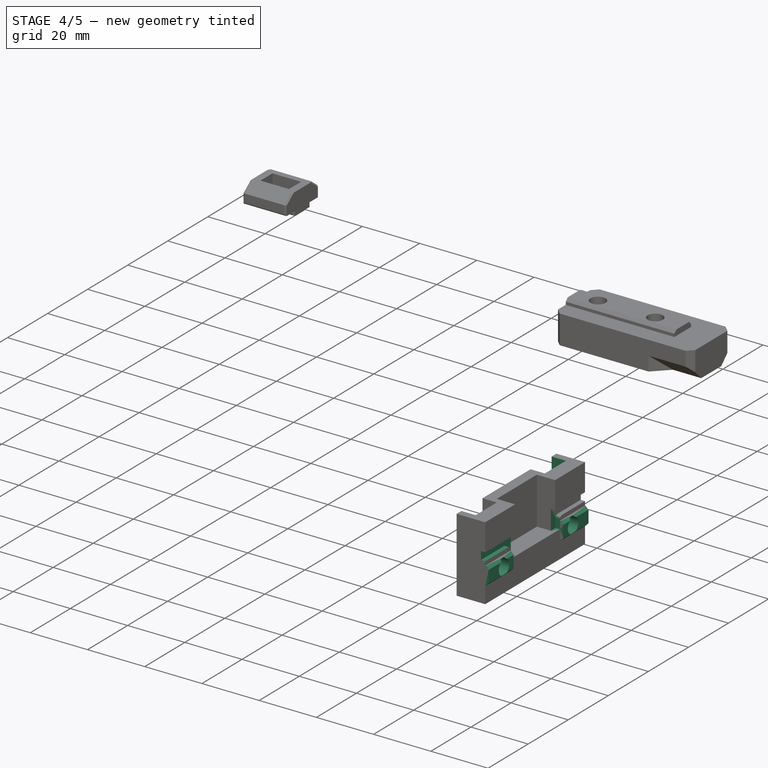
[diagram: stage 4 of 5 — iso view after this stage's code; geometry added in this stage tinted green]
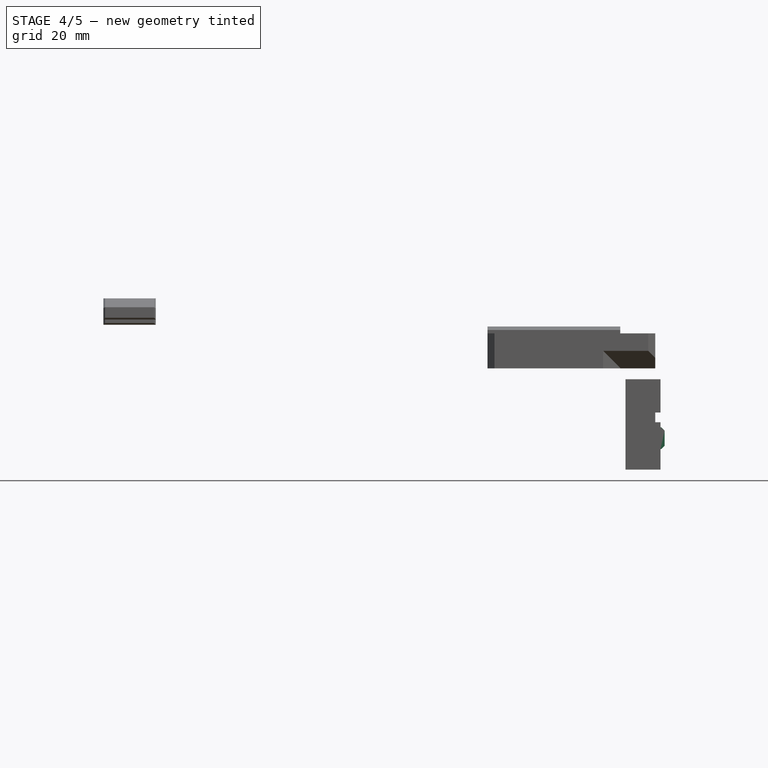
[diagram: stage 4 of 5 — front view after this stage's code; geometry added in this stage tinted green]
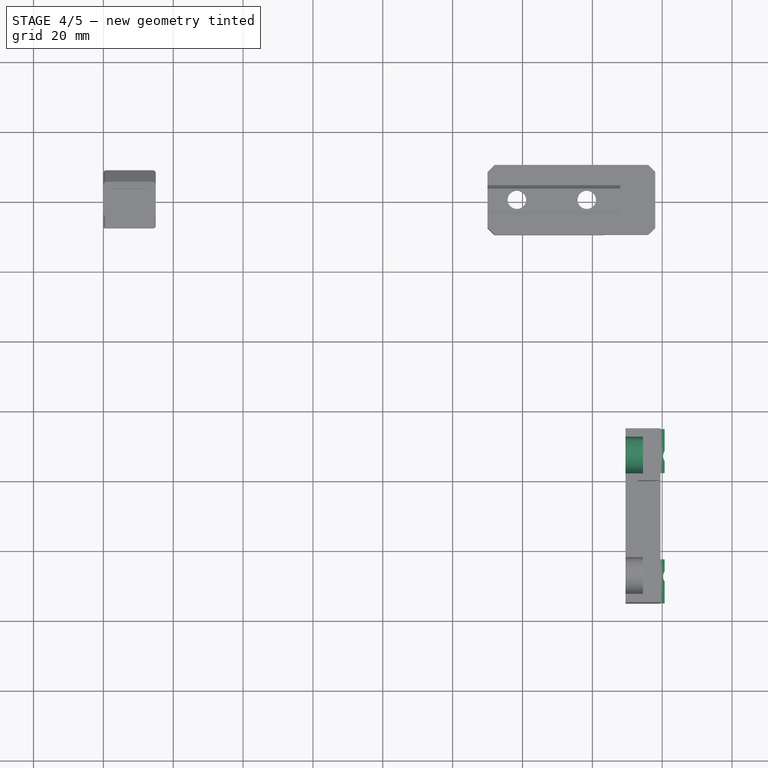
[diagram: stage 4 of 5 — top view after this stage's code; geometry added in this stage tinted green]
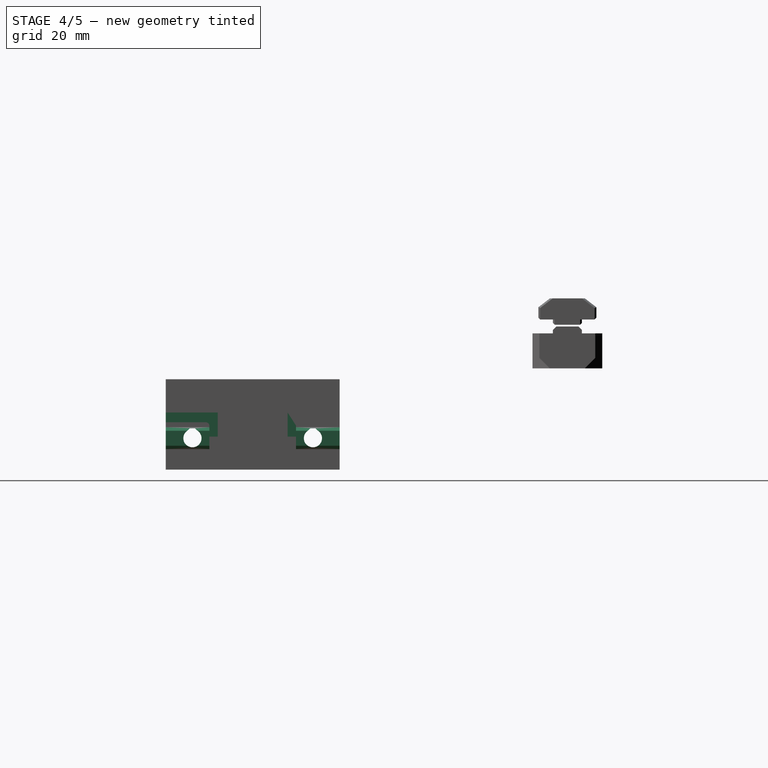
[diagram: stage 4 of 5 — right view after this stage's code; geometry added in this stage tinted green]
FEATURE [PartDesign::Plane] DatumPlane
  AttachmentOffset = pos=(0,0,-24.9) rot=(0,0,1;0rad)
  Length = 199.641
  MapMode = 5
  Placement = pos=(169.5,-90.1,-27.5) rot=(1,0,0;1.5708rad)
  ResizeMode = 0
  Support = -> [Pocket009]
  Width = 76.6413
FEATURE [PartDesign::Mirrored] Mirrored004
  BaseFeature = -> Pocket009
  MirrorPlane = -> DatumPlane
  Originals = -> [Pocket008]
  Placement = pos=(169.5,0,-27.5) rot=(1,0,0;1.5708rad)
  Refine = true
FEATURE [PartDesign::Mirrored] Mirrored005
  BaseFeature = -> Mirrored004
  MirrorPlane = -> DatumPlane
  Originals = -> [Pocket009]
  Placement = pos=(169.5,0,-27.5) rot=(1,0,0;1.5708rad)
  Refine = true
FEATURE [Sketcher::SketchObject] Sketch014
  ExternalGeometry = -> [Mirrored005]
  MapMode = 5
  Placement = pos=(159.5,0,-27.5) rot=(0.707107,0,0.707107;3.14159rad)
  Support = -> [Mirrored005]
  sketch-geometry (4):
    g0: LineSegment StartX=-5.43 StartY=80.1 StartZ=0 EndX=-9.53 EndY=80.1 EndZ=0
    g1: LineSegment StartX=-9.53 StartY=80.1 StartZ=0 EndX=-9.53 EndY=77.7 EndZ=0
    g2: LineSegment StartX=-9.53 StartY=77.7 StartZ=0 EndX=-5.43 EndY=77.7 EndZ=0
    g3: LineSegment StartX=-5.43 StartY=77.7 StartZ=0 EndX=-5.43 EndY=80.1 EndZ=0
  constraints (10):
    c: Coincident(g0,g1)
    c: Coincident(g1,g2)
    c: Coincident(g2,g3)
    c: Coincident(g3,g0)
    c: Horizontal(g2)
    c: Vertical(g1)
    c: Vertical(g3)
    c: Coincident(g0,g-4)
    c: Coincident(g0,g-3)
    c: DistanceY(g1,g1) = 2.4
FEATURE [PartDesign::Pocket] Pocket010
  BaseFeature = -> Mirrored005
  Length = 0
  Length2 = 100
  Placement = pos=(169.5,0,-27.5) rot=(1,0,0;1.5708rad)
  Profile = -> Sketch014
  Refine = true
  Type = 3
  UpToFace = -> Mirrored005 [Face25]
FEATURE [PartDesign::Mirrored] Mirrored006
  BaseFeature = -> Pocket010
  MirrorPlane = -> DatumPlane
  Originals = -> [Pocket010]
  Placement = pos=(169.5,0,-27.5) rot=(1,0,0;1.5708rad)
  Refine = true
FEATURE [PartDesign::Fillet] Fillet
  Base = -> Mirrored006 [Edge15,Edge51]
  BaseFeature = -> Mirrored006
  Placement = pos=(169.5,0,-27.5) rot=(1,0,0;1.5708rad)
  Radius = 1
FEATURE [PartDesign::ShapeBinder] ShapeBinder003
  Placement = pos=(169.5,0,-27.5) rot=(1,0,0;1.5708rad)
  Support = -> [Pocket006]
  TraceSupport = true
FEATURE [Sketcher::SketchObject] Sketch015
  ExternalGeometry = -> [ShapeBinder003]
  MapMode = 5
  Placement = pos=(169.5,-65.2,-27.5) rot=(-1,0,0;1.5708rad)
  Support = -> [Fillet]
  sketch-geometry (7):
    g0: LineSegment StartX=-10 StartY=13.125 StartZ=0 EndX=-9.775 EndY=13.125 EndZ=0
    g1: LineSegment StartX=-9.775 StartY=13.125 StartZ=0 EndX=-8.8 EndY=12.15 EndZ=0
    g2: LineSegment StartX=-8.8 StartY=12.15 StartZ=0 EndX=-8.8 EndY=7.85 EndZ=0
    g3: LineSegment StartX=-8.8 StartY=7.85 StartZ=0 EndX=-9.775 EndY=6.875 EndZ=0
    g4: LineSegment StartX=-9.775 StartY=6.875 StartZ=0 EndX=-10 EndY=6.875 EndZ=0
    g5: LineSegment StartX=-10 StartY=6.875 StartZ=0 EndX=-10 EndY=13.125 EndZ=0
    g6: LineSegment [constr] StartX=-9.775 StartY=13.125 StartZ=0 EndX=-9.775 EndY=6.875 EndZ=0
  constraints (18):
    c: Coincident(g0,g-3)
    c: PointOnObject(g0,g-3)
    c: Coincident(g1,g0)
    c: Coincident(g2,g1)
    c: Vertical(g2)
    c: Coincident(g3,g2)
    c: PointOnObject(g3,g-4)
    c: Coincident(g4,g3)
    c: Coincident(g4,g-4)
    c: Coincident(g5,g4)
    c: Coincident(g5,g0)
    c: Angle(g1,g2) = 2.35619
    c: Angle(g2,g3) = 2.35619
    c: Coincident(g6,g0)
    c: Coincident(g6,g3)
    c: Vertical(g6)
    c: DistanceX(g0,g0) = 0.225
    c: DistanceX(g0,g1) = 1.2
FEATURE [PartDesign::Pad] Pad003
  BaseFeature = -> Fillet
  Length = 10
  Length2 = 100
  Placement = pos=(169.5,0,-27.5) rot=(1,0,0;1.5708rad)
  Profile = -> Sketch015
  Refine = true
  Reversed = true
  Type = 3
  UpToFace = -> Fillet [Face6]
FEATURE [PartDesign::Mirrored] Mirrored007
  BaseFeature = -> Pad003
  MirrorPlane = -> DatumPlane
  Originals = -> [Pad003]
  Placement = pos=(169.5,0,-27.5) rot=(1,0,0;1.5708rad)
  Refine = true
FEATURE [Sketcher::SketchObject] Sketch016
  ExternalGeometry = -> [Mirrored007]
  MapMode = 5
  Placement = pos=(154.5,0,-27.5) rot=(0.707107,0,-0.707107;3.14159rad)
  Support = -> [Mirrored007]
  sketch-geometry (1):
    g0: Circle CenterX=10 CenterY=107.35 CenterZ=0 NormalX=0 NormalY=0 NormalZ=1 AngleXU=0 Radius=2.6
  constraints (2):
    c: Coincident(g0,g-3)
    c: Diameter(g0) = 5.2
FEATURE [PartDesign::Pocket] Pocket011
  BaseFeature = -> Mirrored007
  Length = 5
  Length2 = 100
  Placement = pos=(169.5,0,-27.5) rot=(1,0,0;1.5708rad)
  Profile = -> Sketch016
  Refine = true
  Type = 1
FEATURE [PartDesign::Mirrored] Mirrored008
  BaseFeature = -> Pocket011
  MirrorPlane = -> DatumPlane
  Originals = -> [Pocket011]
  Placement = pos=(169.5,0,-27.5) rot=(1,0,0;1.5708rad)
  Refine = true
FEATURE [Sketcher::SketchObject] Sketch017
  ExternalGeometry = -> [Mirrored008]
  MapMode = 5
  Placement = pos=(154.5,0,-27.5) rot=(0.707107,0,-0.707107;3.14159rad)
  Support = -> [Mirrored008]
  sketch-geometry (5):
    g0: LineSegment StartX=7.76295 StartY=108.675 StartZ=0 EndX=7.199 EndY=108.111 EndZ=0
    g1: LineSegment StartX=7.199 StartY=108.111 StartZ=0 EndX=7.199 EndY=106.589 EndZ=0
    g2: LineSegment StartX=7.199 StartY=106.589 StartZ=0 EndX=7.76295 EndY=106.025 EndZ=0
    g3: LineSegment StartX=7.76295 StartY=106.025 StartZ=0 EndX=7.76295 EndY=108.675 EndZ=0
    g4: LineSegment [constr] StartX=7.4 StartY=108.312 StartZ=0 EndX=7.4 EndY=106.388 EndZ=0
  constraints (16):
    c: PointOnObject(g0,g-3)
    c: Coincident(g1,g0)
    c: Vertical(g1)
    c: Coincident(g2,g1)
    c: PointOnObject(g2,g-3)
    c: Coincident(g3,g2)
    c: Coincident(g3,g0)
    c: Vertical(g3)
    c: PointOnObject(g4,g0)
    c: PointOnObject(g4,g2)
    c: Vertical(g4)
    c: Tangent(g4,g-3)
    c: DistanceY(g3,g3) = 2.65
    c: Angle(g0,g3) = 0.785398
    c: Angle(g3,g2) = 0.785398
    c: DistanceX(g0,g4) = 0.201
FEATURE [PartDesign::Pocket] Pocket012
  BaseFeature = -> Mirrored008
  Length = 5
  Length2 = 100
  Placement = pos=(169.5,0,-27.5) rot=(1,0,0;1.5708rad)
  Profile = -> Sketch017
  Refine = true
  Type = 1
FEATURE [PartDesign::Mirrored] Mirrored009
  BaseFeature = -> Pocket012
  MirrorPlane = -> DatumPlane
  Originals = -> [Pocket012]
  Placement = pos=(169.5,0,-27.5) rot=(1,0,0;1.5708rad)
  Refine = true
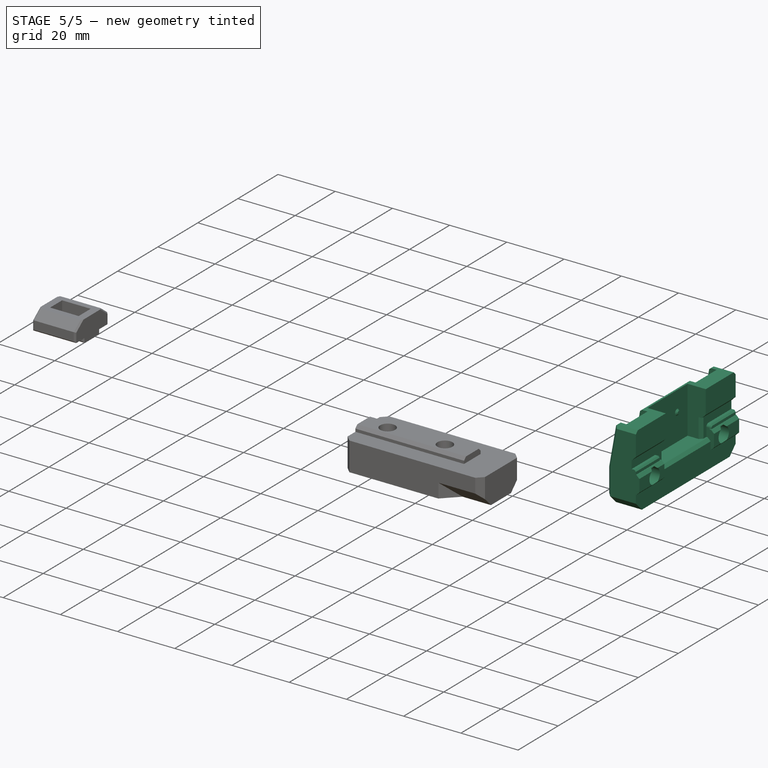
[diagram: stage 5 of 5 — iso view after this stage's code; geometry added in this stage tinted green]
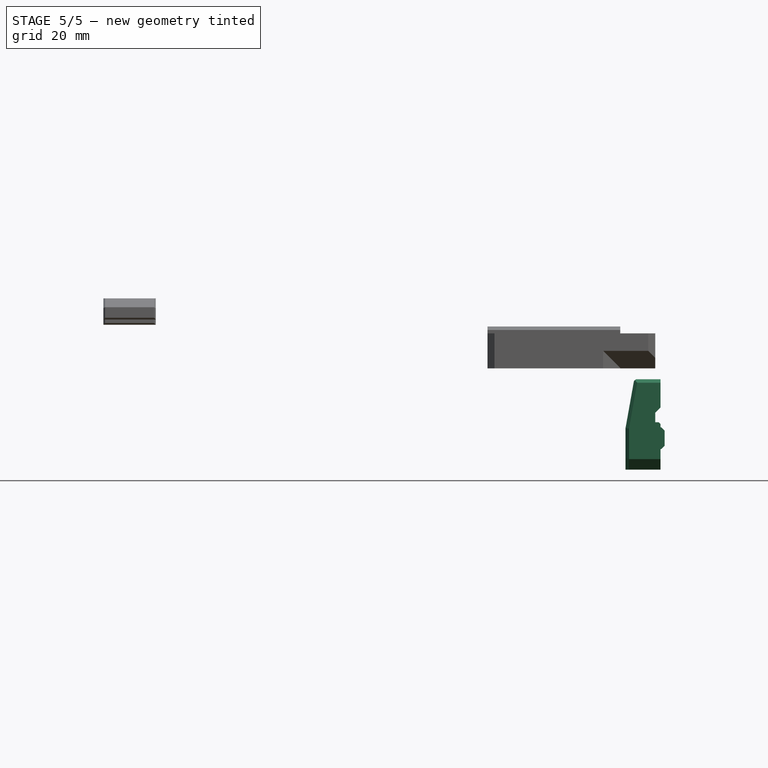
[diagram: stage 5 of 5 — front view after this stage's code; geometry added in this stage tinted green]
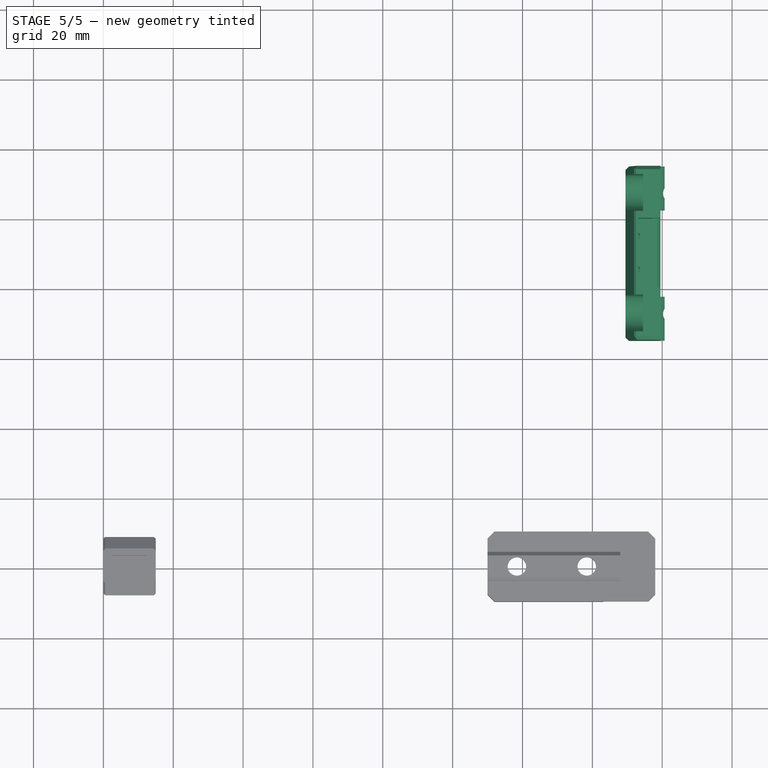
[diagram: stage 5 of 5 — top view after this stage's code; geometry added in this stage tinted green]
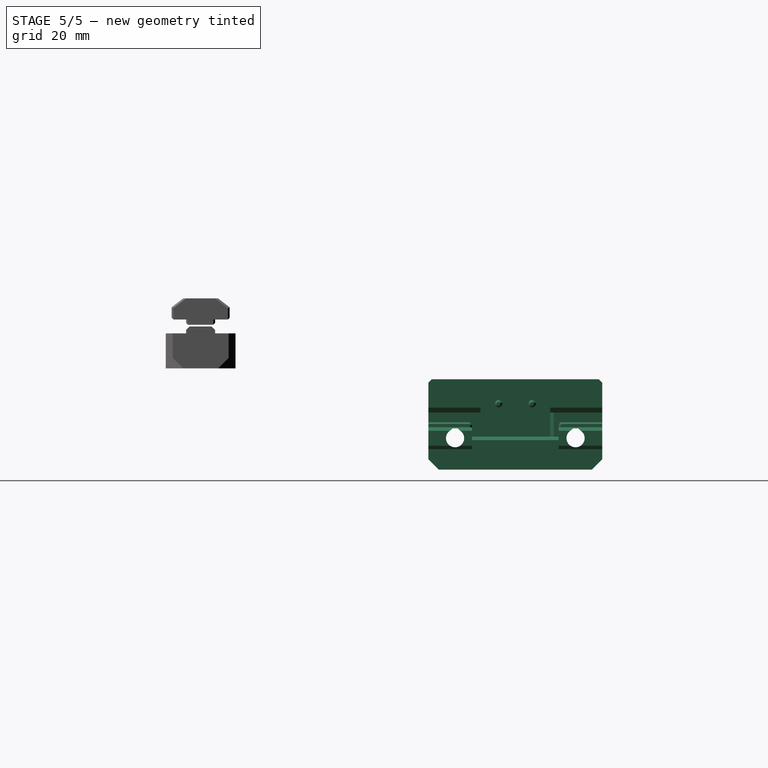
[diagram: stage 5 of 5 — right view after this stage's code; geometry added in this stage tinted green]
FEATURE [PartDesign::Plane] DatumPlane001
  AttachmentOffset = pos=(0,0,-7.01) rot=(0,0,1;0rad)
  Length = 209.458
  MapMode = 5
  Placement = pos=(169.5,-1e-16,-27.635) rot=(0,0,1;3.14159rad)
  ResizeMode = 0
  Support = -> [Mirrored009]
  Width = 154.958
FEATURE [Sketcher::SketchObject] Sketch018
  ExternalGeometry = -> [Mirrored009]
  MapMode = 5
  Placement = pos=(169.5,-1e-16,-27.635) rot=(0,0,1;3.14159rad)
  Support = -> [DatumPlane001]
  sketch-geometry (5):
    g0: LineSegment StartX=16.4 StartY=94.9 StartZ=0 EndX=15.85 EndY=94.9 EndZ=0
    g1: LineSegment StartX=15.85 StartY=94.9 StartZ=0 EndX=15.85 EndY=95.4 EndZ=0
    g2: LineSegment StartX=15.85 StartY=95.4 StartZ=0 EndX=16.4 EndY=95.95 EndZ=0
    g3: LineSegment StartX=16.4 StartY=95.95 StartZ=0 EndX=16.4 EndY=94.9 EndZ=0
    g4: LineSegment [constr] StartX=15.85 StartY=94.9 StartZ=0 EndX=14.85 EndY=94.9 EndZ=0
  constraints (15):
    c: Horizontal(g0)
    c: Coincident(g1,g0)
    c: Coincident(g2,g1)
    c: PointOnObject(g2,g-3)
    c: Coincident(g3,g2)
    c: Coincident(g3,g0)
    c: Vertical(g3)
    c: Vertical(g1)
    c: Angle(g2,g3) = 0.785398
    c: DistanceY(g3,g3) = 1.05
    c: DistanceY(g1,g1) = 0.5
    c: DistanceY(g0,g-4) = 5.2
    c: Coincident(g4,g0)
    c: Horizontal(g4)
    c: DistanceX(g4,g4) = 1
FEATURE [PartDesign::Revolution] Revolution
  Angle = 360
  Axis = (1,0,2e-16)
  Base = (153.65,-94.9,-27.635)
  BaseFeature = -> Mirrored009
  Placement = pos=(169.5,0,-27.5) rot=(1,0,0;1.5708rad)
  Profile = -> Sketch018
  ReferenceAxis = -> Sketch018 [Axis0]
  Refine = true
  Reversed = true
FEATURE [PartDesign::Mirrored] Mirrored010
  BaseFeature = -> Revolution
  MirrorPlane = -> DatumPlane
  Originals = -> [Revolution]
  Placement = pos=(169.5,0,-27.5) rot=(1,0,0;1.5708rad)
  Refine = true
FEATURE [Sketcher::SketchObject] Sketch019
  ExternalGeometry = -> [Mirrored010]
  MapMode = 5
  Placement = pos=(169.5,-115,-27.5) rot=(1,0,0;1.5708rad)
  Support = -> [Mirrored010]
  sketch-geometry (3):
    g0: LineSegment StartX=-20 StartY=-7.125 StartZ=0 EndX=-17.5 EndY=6.875 EndZ=0
    g1: LineSegment StartX=-17.5 StartY=6.875 StartZ=0 EndX=-20 EndY=6.875 EndZ=0
    g2: LineSegment StartX=-20 StartY=6.875 StartZ=0 EndX=-20 EndY=-7.125 EndZ=0
  constraints (8):
    c: PointOnObject(g0,g-4)
    c: PointOnObject(g0,g-3)
    c: Coincident(g1,g0)
    c: Coincident(g2,g1)
    c: Coincident(g2,g0)
    c: Coincident(g1,g-4)
    c: DistanceX(g1,g1) = 2.5
    c: DistanceY(g2,g2) = 14
FEATURE [PartDesign::Pocket] Pocket013
  BaseFeature = -> Mirrored010
  Length = 5
  Length2 = 100
  Placement = pos=(169.5,0,-27.5) rot=(1,0,0;1.5708rad)
  Profile = -> Sketch019
  Refine = true
  Type = 1
FEATURE [PartDesign::Chamfer] Chamfer
  Base = -> Pocket013 [Edge2,Edge95]
  BaseFeature = -> Pocket013
  Placement = pos=(169.5,0,-27.5) rot=(1,0,0;1.5708rad)
  Size = 1.4
FEATURE [PartDesign::Chamfer] Chamfer001
  Base = -> Chamfer [Edge108,Edge172]
  BaseFeature = -> Chamfer
  Placement = pos=(169.5,0,-27.5) rot=(1,0,0;1.5708rad)
  Size = 0.5
FEATURE [PartDesign::Chamfer] Chamfer002
  Base = -> Chamfer001 [Edge27]
  BaseFeature = -> Chamfer001
  Placement = pos=(169.5,0,-27.5) rot=(1,0,0;1.5708rad)
  Size = 1
FEATURE [PartDesign::Chamfer] Chamfer003
  Base = -> Chamfer002 [Edge35]
  BaseFeature = -> Chamfer002
  Placement = pos=(169.5,0,-27.5) rot=(1,0,0;1.5708rad)
  Size = 1
FEATURE [PartDesign::Chamfer] Chamfer004
  Base = -> Chamfer003 [Edge99,Edge136]
  BaseFeature = -> Chamfer003
  Placement = pos=(169.5,0,-27.5) rot=(1,0,0;1.5708rad)
  Size = 3
FEATURE [PartDesign::Chamfer] Chamfer005
  Base = -> Chamfer004 [Edge49,Edge14]
  BaseFeature = -> Chamfer004
  Placement = pos=(169.5,0,-27.5) rot=(1,0,0;1.5708rad)
  Size = 1
FEATURE [PartDesign::Chamfer] Chamfer006
  Base = -> Chamfer005 [Edge25,Edge24,Edge102,Edge1,Edge3,Edge29]
  BaseFeature = -> Chamfer005
  Placement = pos=(169.5,0,-27.5) rot=(1,0,0;1.5708rad)
  Size = 1
FEATURE [PartDesign::Chamfer] Chamfer007
  Base = -> Chamfer006 [Edge80,Edge86,Edge87]
  BaseFeature = -> Chamfer006
  Placement = pos=(169.5,0,-27.5) rot=(1,0,0;1.5708rad)
  Size = 0.5
FEATURE [PartDesign::Body] Body002  label="y_positive"
  Group = -> [ShapeBinder,ShapeBinder001,Sketch009,ShapeBinder002,Pad002,Sketch010,Pocket007,Sketch012,Pocket008,Sketch013,Pocket009,DatumPlane,Mirrored004,Mirrored005,Sketch014,Pocket010,Mirrored006,Fillet,ShapeBinder003,Sketch015,Pad003,Mirrored007,Sketch016,Pocket011,Mirrored008,Sketch017,Pocket012,Mirrored009,DatumPlane001,Sketch018,Revolution,Mirrored010,Sketch019,Pocket013,Chamfer,Chamfer001,Chamfer002,+5 more]
  Origin = -> Origin005
  Tip = -> Chamfer007
FEATURE [Part::Mirroring] Part__Mirroring  label="y_negative"
  Base = (0,0,0)
  Normal = (0,1,0)
  Source = -> Body002
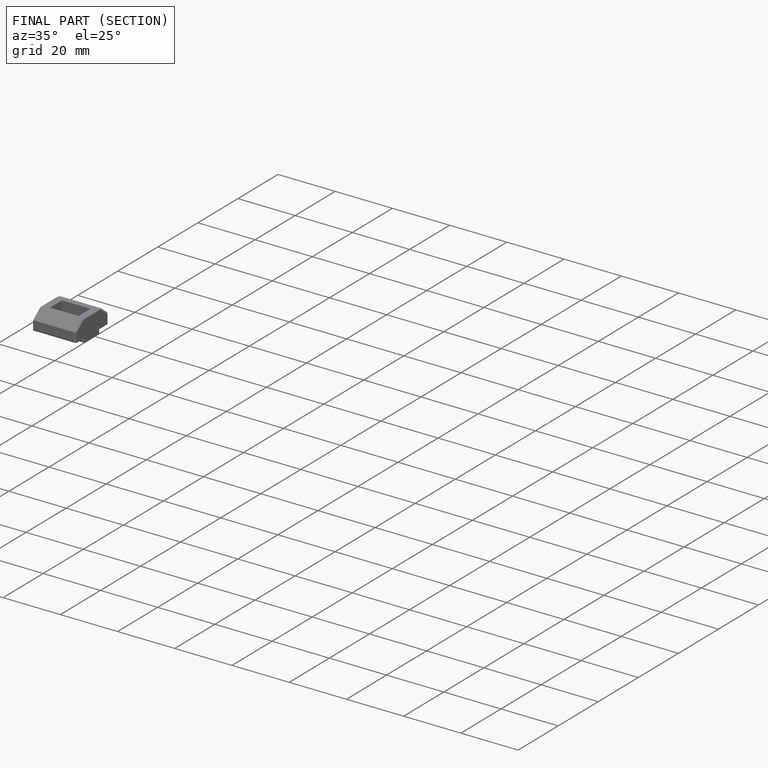
[diagram: finished part — half-section view (interior)]
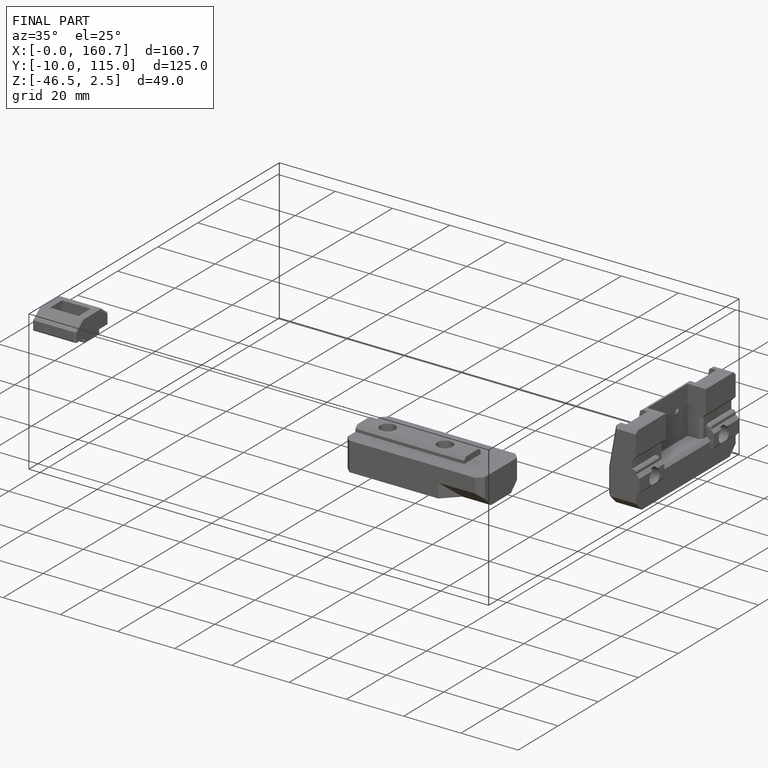
[diagram: finished part — iso view with bounding-box wireframe]
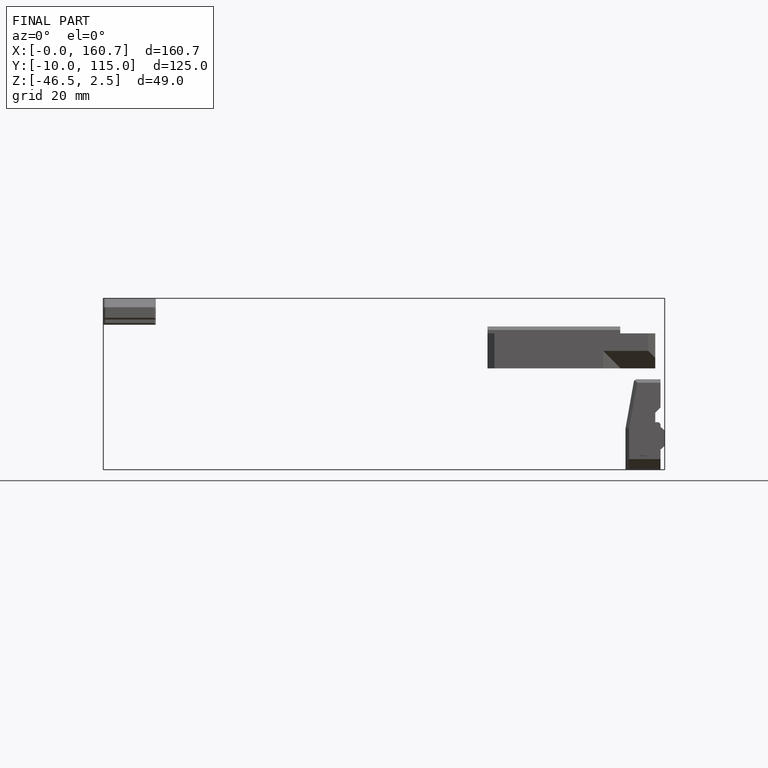
[diagram: finished part — front view with bounding-box wireframe]
